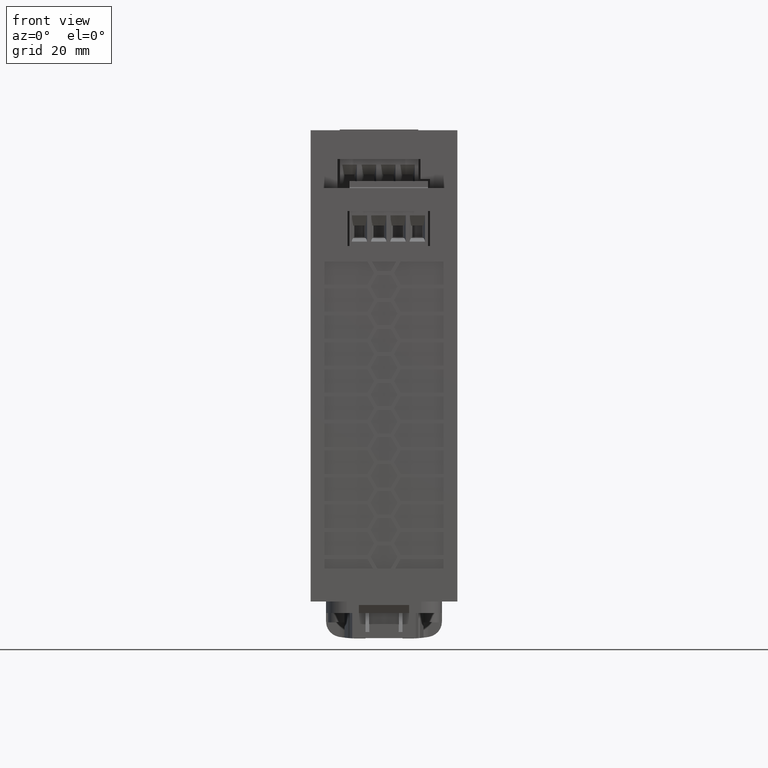
[diagram: clean part render]
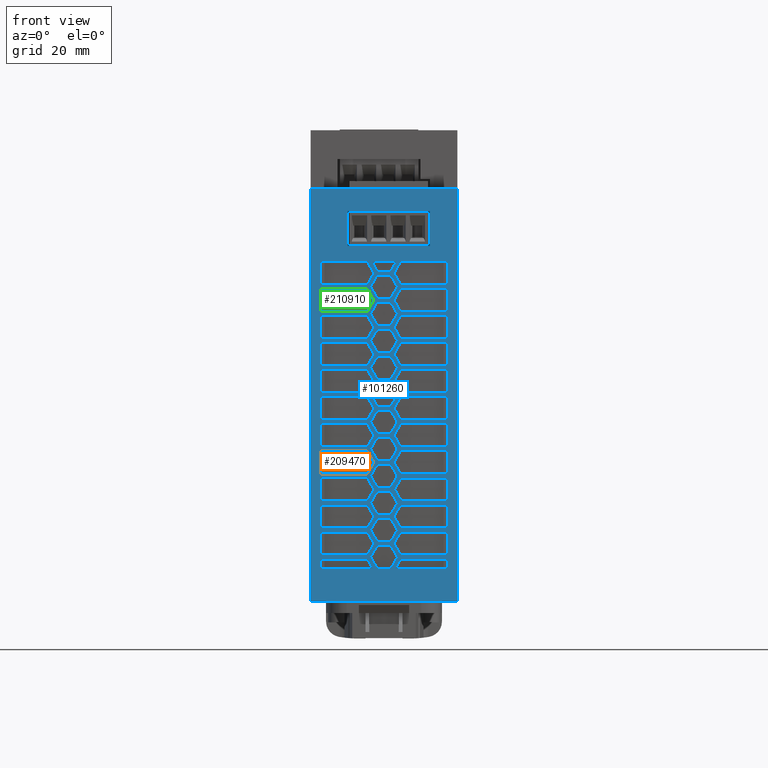
[diagram: same view with three faces highlighted in distinct colors, each labeled with its STEP entity id]
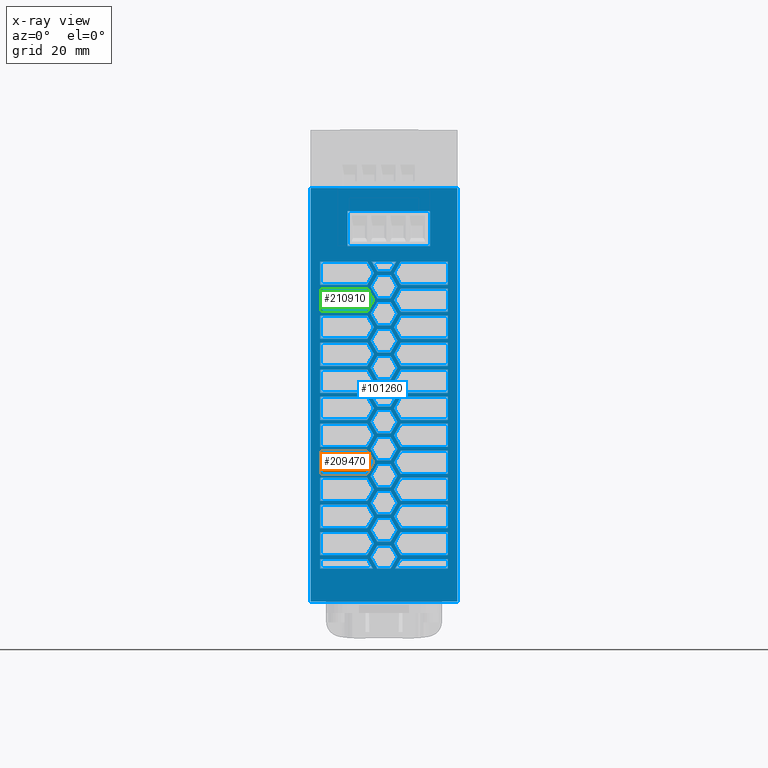
[diagram: x-ray of the same camera — body ghosted, the three highlighted faces saturated]
A machine part, front view with three faces highlighted in distinct colors.
The next image is the same camera in x-ray (body ghosted, the three faces saturated) — at least one of them is partly hidden behind the body in this view.
Their STEP definitions:

[orange] entity #209470 — the highlighted planar face has unit normal (0, -1, 0).
#159850=CARTESIAN_POINT('',(1.50008701269979,39.0000000000089,
128.10477354438));
#159860=VERTEX_POINT('',#159850);
#159890=CARTESIAN_POINT('',(1.50008701269979,0.,128.10477354438));
#159900=DIRECTION('',(-4.86344556426725E-30,1.,-3.53758905334135E-25));
#159910=VECTOR('',#159900,1.);
#159920=LINE('',#159890,#159910);
#159930=CARTESIAN_POINT('',(1.50008701269979,33.0000000000089,
128.10477354438));
#159940=VERTEX_POINT('',#159930);
#159950=EDGE_CURVE('',#159940,#159860,#159920,.T.);
#180740=CARTESIAN_POINT('',(13.6699599926279,39.0000000000089,
128.104606247324));
#180750=VERTEX_POINT('',#180740);
#180780=CARTESIAN_POINT('',(-1.37468202296986E-5,39.0000000000089,
128.104794165996));
#180790=DIRECTION('',(0.999999999905512,3.00926553810506E-36,
-1.37468202355512E-5));
#180800=VECTOR('',#180790,1.);
#180810=LINE('',#180780,#180800);
#180820=EDGE_CURVE('',#159860,#180750,#180810,.T.);
#186580=CARTESIAN_POINT('',(13.6699599926279,33.0000000000089,
128.104606247324));
#186590=VERTEX_POINT('',#186580);
#186620=CARTESIAN_POINT('',(-5.38259888883549,0.,128.104868159426));
#186630=DIRECTION('',(-0.499999999952773,-0.866025403784429,
6.87341011777585E-6));
#186640=VECTOR('',#186630,1.);
#186650=LINE('',#186620,#186640);
#186660=CARTESIAN_POINT('',(15.4020108000332,36.0000000000089,
128.104582437133));
#186670=VERTEX_POINT('',#186660);
#186680=EDGE_CURVE('',#186670,#186590,#186650,.T.);
#195410=CARTESIAN_POINT('',(36.1866204889019,0.,128.10429671484));
#195420=DIRECTION('',(0.499999999952773,-0.866025403784429,
-6.87341011777585E-6));
#195430=VECTOR('',#195420,1.);
#195440=LINE('',#195410,#195430);
#195450=EDGE_CURVE('',#180750,#186670,#195440,.T.);
#200320=CARTESIAN_POINT('',(-1.37468202296986E-5,33.0000000000089,
128.104794165996));
#200330=DIRECTION('',(-0.999999999905512,-3.00926553810506E-36,
1.37468202355512E-5));
#200340=VECTOR('',#200330,1.);
#200350=LINE('',#200320,#200340);
#200360=EDGE_CURVE('',#186590,#159940,#200350,.T.);
#209350=CARTESIAN_POINT('',(29.2321378176484,53.5000000000094,
128.104392316863));
#209360=DIRECTION('',(1.37468202355512E-5,3.53758905367566E-25,
0.999999999905512));
#209370=DIRECTION('',(0.999999999905512,-2.57338714660514E-20,
-1.37468202355512E-5));
#209380=AXIS2_PLACEMENT_3D('',#209350,#209360,#209370);
#209390=PLANE('',#209380);
#209400=ORIENTED_EDGE('',*,*,#159950,.F.);
#209410=ORIENTED_EDGE('',*,*,#180820,.F.);
#209420=ORIENTED_EDGE('',*,*,#195450,.F.);
#209430=ORIENTED_EDGE('',*,*,#186680,.F.);
#209440=ORIENTED_EDGE('',*,*,#200360,.F.);
#209450=EDGE_LOOP('',(#209440,#209430,#209420,#209410,#209400));
#209460=FACE_OUTER_BOUND('',#209450,.T.);
#209470=ADVANCED_FACE('',(#209460),#209390,.T.);

[blue] entity #101260 — the highlighted planar face has unit normal (0, -1, 0).
#82440=CARTESIAN_POINT('',(-0.99989924024375,9.8339109739502E-12,
129.104807911336));
#82450=VERTEX_POINT('',#82440);
#82480=CARTESIAN_POINT('',(34.0001007564492,9.83391187468138E-12,
129.104326772628));
#82490=DIRECTION('',(0.999999999905512,2.57338714660564E-20,
-1.37468202355512E-5));
#82500=VECTOR('',#82490,1.);
#82510=LINE('',#82480,#82500);
#82520=CARTESIAN_POINT('',(37.0001007561657,9.83391195188299E-12,
129.104285532167));
#82530=VERTEX_POINT('',#82520);
#82540=EDGE_CURVE('',#82450,#82530,#82510,.T.);
#84370=CARTESIAN_POINT('',(37.0001007561657,0.,129.104285532167));
#84380=DIRECTION('',(-2.5733871468488E-20,1.,0.));
#84390=VECTOR('',#84380,1.);
#84400=LINE('',#84370,#84390);
#84410=CARTESIAN_POINT('',(37.0001007561657,107.000000000009,
129.104285532167));
#84420=VERTEX_POINT('',#84410);
#84430=EDGE_CURVE('',#82530,#84420,#84400,.T.);
#84930=CARTESIAN_POINT('',(37.0001007561657,9.83391195188299E-12,
129.104285532167));
#84940=DIRECTION('',(1.37468202355512E-5,3.53758905042085E-25,
0.999999999905512));
#84950=DIRECTION('',(-0.999999999905512,-2.57338714660564E-20,
1.37468202355512E-5));
#84960=AXIS2_PLACEMENT_3D('',#84930,#84940,#84950);
#84970=PLANE('',#84960);
#84980=CARTESIAN_POINT('',(0.,101.000000000009,129.104794165901));
#84990=DIRECTION('',(-0.999999999905512,0.,1.37468202355512E-5));
#85000=VECTOR('',#84990,1.);
#85010=LINE('',#84980,#85000);
#85020=CARTESIAN_POINT('',(29.9401007568328,101.000000000009,
129.104382584718));
#85030=VERTEX_POINT('',#85020);
#85040=CARTESIAN_POINT('',(8.54010075885484,101.000000000009,
129.104676766671));
#85050=VERTEX_POINT('',#85040);
#85060=EDGE_CURVE('',#85030,#85050,#85010,.T.);
#85070=ORIENTED_EDGE('',*,*,#85060,.F.);
#85080=CARTESIAN_POINT('',(8.54010075885484,0.,129.104676766671));
#85090=DIRECTION('',(4.86344526031472E-30,-1.,3.53758905008654E-25));
#85100=VECTOR('',#85090,1.);
#85110=LINE('',#85080,#85100);
#85120=CARTESIAN_POINT('',(8.54010075885484,92.0000000000089,
129.104676766671));
#85130=VERTEX_POINT('',#85120);
#85140=EDGE_CURVE('',#85050,#85130,#85110,.T.);
#85150=ORIENTED_EDGE('',*,*,#85140,.F.);
#85160=CARTESIAN_POINT('',(0.,92.0000000000089,129.104794165901));
#85170=DIRECTION('',(0.999999999905512,0.,-1.37468202355512E-5));
#85180=VECTOR('',#85170,1.);
#85190=LINE('',#85160,#85180);
#85200=CARTESIAN_POINT('',(29.9401007568328,92.0000000000089,
129.104382584718));
#85210=VERTEX_POINT('',#85200);
#85220=EDGE_CURVE('',#85130,#85210,#85190,.T.);
#85230=ORIENTED_EDGE('',*,*,#85220,.F.);
#85240=CARTESIAN_POINT('',(29.9401007568328,0.,129.104382584718));
#85250=DIRECTION('',(4.86344526031472E-30,-1.,3.53758905008654E-25));
#85260=VECTOR('',#85250,1.);
#85270=LINE('',#85240,#85260);
#85280=EDGE_CURVE('',#85030,#85210,#85270,.T.);
#85290=ORIENTED_EDGE('',*,*,#85280,.T.);
#85300=EDGE_LOOP('',(#85290,#85230,#85150,#85070));
#85310=FACE_BOUND('',#85300,.T.);
#85320=CARTESIAN_POINT('',(-0.99989924024375,0.,129.104807911336));
#85330=DIRECTION('',(-2.5733871468488E-20,1.,0.));
#85340=VECTOR('',#85330,1.);
#85350=LINE('',#85320,#85340);
#85360=CARTESIAN_POINT('',(-0.99989924024375,107.000000000009,
129.104807911336));
#85370=VERTEX_POINT('',#85360);
#85380=EDGE_CURVE('',#82450,#85370,#85350,.T.);
#85390=ORIENTED_EDGE('',*,*,#85380,.F.);
#85400=CARTESIAN_POINT('',(0.,107.000000000009,129.104794165901));
#85410=DIRECTION('',(-0.999999999905512,0.,1.37468202355512E-5));
#85420=VECTOR('',#85410,1.);
#85430=LINE('',#85400,#85420);
#85440=EDGE_CURVE('',#84420,#85370,#85430,.T.);
#85450=ORIENTED_EDGE('',*,*,#85440,.T.);
#85460=ORIENTED_EDGE('',*,*,#84430,.T.);
#85470=ORIENTED_EDGE('',*,*,#82540,.T.);
#85480=EDGE_LOOP('',(#85470,#85460,#85450,#85390));
#85490=FACE_OUTER_BOUND('',#85480,.T.);
#85500=CARTESIAN_POINT('',(0.,71.5000000000089,129.104794165901));
#85510=DIRECTION('',(-0.999999999905512,0.,1.37468202355512E-5));
#85520=VECTOR('',#85510,1.);
#85530=LINE('',#85500,#85520);
#85540=CARTESIAN_POINT('',(19.7321515653663,71.5000000000089,
129.104522911561));
#85550=VERTEX_POINT('',#85540);
#85560=CARTESIAN_POINT('',(16.2680499505556,71.5000000000089,
129.104570531943));
#85570=VERTEX_POINT('',#85560);
#85580=EDGE_CURVE('',#85550,#85570,#85530,.T.);
#85590=ORIENTED_EDGE('',*,*,#85580,.T.);
#85600=CARTESIAN_POINT('',(-21.5483926777984,0.,129.105090387782));
#85610=DIRECTION('',(-0.499999999952773,-0.866025403784429,
6.87341011779141E-6));
#85620=VECTOR('',#85610,1.);
#85630=LINE('',#85600,#85620);
#85640=CARTESIAN_POINT('',(21.4642023727716,74.5000000000089,
129.10449910137));
#85650=VERTEX_POINT('',#85640);
#85660=EDGE_CURVE('',#85650,#85550,#85630,.T.);
#85670=ORIENTED_EDGE('',*,*,#85660,.T.);
#85680=CARTESIAN_POINT('',(64.4767974233417,0.,129.103907814958));
#85690=DIRECTION('',(0.499999999952773,-0.866025403784429,
-6.87341011779141E-6));
#85700=VECTOR('',#85690,1.);
#85710=LINE('',#85680,#85700);
#85720=CARTESIAN_POINT('',(19.7321515653663,77.5000000000089,
129.104522911561));
#85730=VERTEX_POINT('',#85720);
#85740=EDGE_CURVE('',#85730,#85650,#85710,.T.);
#85750=ORIENTED_EDGE('',*,*,#85740,.T.);
#85760=CARTESIAN_POINT('',(0.,77.5000000000089,129.104794165901));
#85770=DIRECTION('',(0.999999999905512,0.,-1.37468202355512E-5));
#85780=VECTOR('',#85770,1.);
#85790=LINE('',#85760,#85780);
#85800=CARTESIAN_POINT('',(16.2680499505557,77.5000000000089,
129.104570531943));
#85810=VERTEX_POINT('',#85800);
#85820=EDGE_CURVE('',#85810,#85730,#85790,.T.);
#85830=ORIENTED_EDGE('',*,*,#85820,.T.);
#85840=CARTESIAN_POINT('',(-28.4765959074197,0.,129.105185628546));
#85850=DIRECTION('',(0.499999999952773,0.866025403784429,
-6.87341011779141E-6));
#85860=VECTOR('',#85850,1.);
#85870=LINE('',#85840,#85860);
#85880=CARTESIAN_POINT('',(14.5359991431503,74.5000000000088,
129.104594342134));
#85890=VERTEX_POINT('',#85880);
#85900=EDGE_CURVE('',#85890,#85810,#85870,.T.);
#85910=ORIENTED_EDGE('',*,*,#85900,.T.);
#85920=CARTESIAN_POINT('',(57.5485941937203,0.,129.104003055722));
#85930=DIRECTION('',(-0.499999999952773,0.866025403784429,
6.87341011779141E-6));
#85940=VECTOR('',#85930,1.);
#85950=LINE('',#85920,#85940);
#85960=EDGE_CURVE('',#85570,#85890,#85950,.T.);
#85970=ORIENTED_EDGE('',*,*,#85960,.T.);
#85980=EDGE_LOOP('',(#85970,#85910,#85830,#85750,#85670,#85590));
#85990=FACE_BOUND('',#85980,.T.);
#86000=CARTESIAN_POINT('',(56.3938936554503,0.,129.104018929183));
#86010=DIRECTION('',(0.499999999952773,-0.866025403784429,
-6.87341011779141E-6));
#86020=VECTOR('',#86010,1.);
#86030=LINE('',#86000,#86020);
#86040=CARTESIAN_POINT('',(19.7321515653663,63.5000000000089,
129.104522911561));
#86050=VERTEX_POINT('',#86040);
#86060=CARTESIAN_POINT('',(21.4642023727717,60.5000000000089,
129.10449910137));
#86070=VERTEX_POINT('',#86060);
#86080=EDGE_CURVE('',#86050,#86070,#86030,.T.);
#86090=ORIENTED_EDGE('',*,*,#86080,.T.);
#86100=CARTESIAN_POINT('',(0.,63.5000000000089,129.104794165901));
#86110=DIRECTION('',(0.999999999905512,0.,-1.37468202355512E-5));
#86120=VECTOR('',#86110,1.);
#86130=LINE('',#86100,#86120);
#86140=CARTESIAN_POINT('',(16.2680499505557,63.5000000000089,
129.104570531943));
#86150=VERTEX_POINT('',#86140);
#86160=EDGE_CURVE('',#86150,#86050,#86130,.T.);
#86170=ORIENTED_EDGE('',*,*,#86160,.T.);
#86180=CARTESIAN_POINT('',(-20.3936921395283,0.,129.105074514321));
#86190=DIRECTION('',(0.499999999952773,0.866025403784429,
-6.87341011779141E-6));
#86200=VECTOR('',#86190,1.);
#86210=LINE('',#86180,#86200);
#86220=CARTESIAN_POINT('',(14.5359991431503,60.5000000000088,
129.104594342134));
#86230=VERTEX_POINT('',#86220);
#86240=EDGE_CURVE('',#86230,#86150,#86210,.T.);
#86250=ORIENTED_EDGE('',*,*,#86240,.T.);
#86260=CARTESIAN_POINT('',(49.4656904258289,0.,129.104114169947));
#86270=DIRECTION('',(-0.499999999952773,0.866025403784429,
6.87341011779141E-6));
#86280=VECTOR('',#86270,1.);
#86290=LINE('',#86260,#86280);
#86300=CARTESIAN_POINT('',(16.2680499505556,57.5000000000089,
129.104570531943));
#86310=VERTEX_POINT('',#86300);
#86320=EDGE_CURVE('',#86310,#86230,#86290,.T.);
#86330=ORIENTED_EDGE('',*,*,#86320,.T.);
#86340=CARTESIAN_POINT('',(0.,57.5000000000089,129.104794165901));
#86350=DIRECTION('',(-0.999999999905512,0.,1.37468202355512E-5));
#86360=VECTOR('',#86350,1.);
#86370=LINE('',#86340,#86360);
#86380=CARTESIAN_POINT('',(19.7321515653663,57.5000000000089,
129.104522911561));
#86390=VERTEX_POINT('',#86380);
#86400=EDGE_CURVE('',#86390,#86310,#86370,.T.);
#86410=ORIENTED_EDGE('',*,*,#86400,.T.);
#86420=CARTESIAN_POINT('',(-13.465488909907,0.,129.104979273557));
#86430=DIRECTION('',(-0.499999999952773,-0.866025403784429,
6.87341011779141E-6));
#86440=VECTOR('',#86430,1.);
#86450=LINE('',#86420,#86440);
#86460=EDGE_CURVE('',#86070,#86390,#86450,.T.);
#86470=ORIENTED_EDGE('',*,*,#86460,.T.);
#86480=EDGE_LOOP('',(#86470,#86410,#86330,#86250,#86170,#86090));
#86490=FACE_BOUND('',#86480,.T.);
#86500=CARTESIAN_POINT('',(-17.5069407938527,0.,129.105034830669));
#86510=DIRECTION('',(-0.499999999952773,-0.866025403784429,
6.87341011779141E-6));
#86520=VECTOR('',#86510,1.);
#86530=LINE('',#86500,#86520);
#86540=CARTESIAN_POINT('',(21.4642023727716,67.5000000000089,
129.10449910137));
#86550=VERTEX_POINT('',#86540);
#86560=CARTESIAN_POINT('',(19.7321515653663,64.5000000000088,
129.104522911561));
#86570=VERTEX_POINT('',#86560);
#86580=EDGE_CURVE('',#86550,#86570,#86530,.T.);
#86590=ORIENTED_EDGE('',*,*,#86580,.T.);
#86600=CARTESIAN_POINT('',(60.435345539396,0.,129.10396337207));
#86610=DIRECTION('',(0.499999999952773,-0.866025403784429,
-6.87341011779141E-6));
#86620=VECTOR('',#86610,1.);
#86630=LINE('',#86600,#86620);
#86640=CARTESIAN_POINT('',(19.7321515653663,70.5000000000089,
129.104522911561));
#86650=VERTEX_POINT('',#86640);
#86660=EDGE_CURVE('',#86650,#86550,#86630,.T.);
#86670=ORIENTED_EDGE('',*,*,#86660,.T.);
#86680=CARTESIAN_POINT('',(0.,70.5000000000089,129.104794165901));
#86690=DIRECTION('',(0.999999999905512,0.,-1.37468202355512E-5));
#86700=VECTOR('',#86690,1.);
#86710=LINE('',#86680,#86700);
#86720=CARTESIAN_POINT('',(16.2680499505557,70.5000000000089,
129.104570531943));
#86730=VERTEX_POINT('',#86720);
#86740=EDGE_CURVE('',#86730,#86650,#86710,.T.);
#86750=ORIENTED_EDGE('',*,*,#86740,.T.);
#86760=CARTESIAN_POINT('',(-24.435144023474,0.,129.105130071434));
#86770=DIRECTION('',(0.499999999952773,0.866025403784429,
-6.87341011779141E-6));
#86780=VECTOR('',#86770,1.);
#86790=LINE('',#86760,#86780);
#86800=CARTESIAN_POINT('',(14.5359991431503,67.5000000000088,
129.104594342134));
#86810=VERTEX_POINT('',#86800);
#86820=EDGE_CURVE('',#86810,#86730,#86790,.T.);
#86830=ORIENTED_EDGE('',*,*,#86820,.T.);
#86840=CARTESIAN_POINT('',(53.5071423097746,0.,129.104058612835));
#86850=DIRECTION('',(-0.499999999952773,0.866025403784429,
6.87341011779141E-6));
#86860=VECTOR('',#86850,1.);
#86870=LINE('',#86840,#86860);
#86880=CARTESIAN_POINT('',(16.2680499505556,64.5000000000088,
129.104570531943));
#86890=VERTEX_POINT('',#86880);
#86900=EDGE_CURVE('',#86890,#86810,#86870,.T.);
#86910=ORIENTED_EDGE('',*,*,#86900,.T.);
#86920=CARTESIAN_POINT('',(0.,64.5000000000088,129.104794165901));
#86930=DIRECTION('',(-0.999999999905512,0.,1.37468202355512E-5));
#86940=VECTOR('',#86930,1.);
#86950=LINE('',#86920,#86940);
#86960=EDGE_CURVE('',#86570,#86890,#86950,.T.);
#86970=ORIENTED_EDGE('',*,*,#86960,.T.);
#86980=EDGE_LOOP('',(#86970,#86910,#86830,#86750,#86670,#86590));
#86990=FACE_BOUND('',#86980,.T.);
#87000=CARTESIAN_POINT('',(-16.3522402555829,0.,129.105018957209));
#87010=DIRECTION('',(0.499999999952773,0.866025403784429,
-6.87341011779141E-6));
#87020=VECTOR('',#87010,1.);
#87030=LINE('',#87000,#87020);
#87040=CARTESIAN_POINT('',(20.5981769690685,64.0000000000088,
129.104511006465));
#87050=VERTEX_POINT('',#87040);
#87060=CARTESIAN_POINT('',(22.3302277764739,67.0000000000089,
129.104487196274));
#87070=VERTEX_POINT('',#87060);
#87080=EDGE_CURVE('',#87050,#87070,#87030,.T.);
#87090=ORIENTED_EDGE('',*,*,#87080,.T.);
#87100=CARTESIAN_POINT('',(57.54859419372,0.,129.104003055722));
#87110=DIRECTION('',(-0.499999999952773,0.866025403784429,
6.87341011779141E-6));
#87120=VECTOR('',#87110,1.);
#87130=LINE('',#87100,#87120);
#87140=CARTESIAN_POINT('',(22.3302277764738,61.0000000000089,
129.104487196274));
#87150=VERTEX_POINT('',#87140);
#87160=EDGE_CURVE('',#87150,#87050,#87130,.T.);
#87170=ORIENTED_EDGE('',*,*,#87160,.T.);
#87180=CARTESIAN_POINT('',(0.,61.0000000000088,129.104794165901));
#87190=DIRECTION('',(-0.999999999905512,0.,1.37468202355512E-5));
#87200=VECTOR('',#87190,1.);
#87210=LINE('',#87180,#87200);
#87220=CARTESIAN_POINT('',(34.500100756402,61.0000000000088,
129.104319899218));
#87230=VERTEX_POINT('',#87220);
#87240=EDGE_CURVE('',#87230,#87150,#87210,.T.);
#87250=ORIENTED_EDGE('',*,*,#87240,.T.);
#87260=CARTESIAN_POINT('',(34.500100756402,0.,129.104319899218));
#87270=DIRECTION('',(4.86344555979027E-30,-1.,3.53758905008654E-25));
#87280=VECTOR('',#87270,1.);
#87290=LINE('',#87260,#87280);
#87300=CARTESIAN_POINT('',(34.500100756402,67.0000000000089,
129.104319899218));
#87310=VERTEX_POINT('',#87300);
#87320=EDGE_CURVE('',#87310,#87230,#87290,.T.);
#87330=ORIENTED_EDGE('',*,*,#87320,.T.);
#87340=CARTESIAN_POINT('',(0.,67.0000000000089,129.104794165901));
#87350=DIRECTION('',(0.999999999905512,0.,-1.37468202355512E-5));
#87360=VECTOR('',#87350,1.);
#87370=LINE('',#87340,#87360);
#87380=EDGE_CURVE('',#87070,#87310,#87370,.T.);
#87390=ORIENTED_EDGE('',*,*,#87380,.T.);
#87400=EDGE_LOOP('',(#87390,#87330,#87250,#87170,#87090));
#87410=FACE_BOUND('',#87400,.T.);
#87420=CARTESIAN_POINT('',(-1.34113325806991,0.,129.104812602219));
#87430=DIRECTION('',(-0.499999999952773,-0.866025403784429,
6.87341011779141E-6));
#87440=VECTOR('',#87430,1.);
#87450=LINE('',#87420,#87440);
#87460=CARTESIAN_POINT('',(21.4642023727717,39.5000000000089,
129.10449910137));
#87470=VERTEX_POINT('',#87460);
#87480=CARTESIAN_POINT('',(19.7321515653663,36.5000000000088,
129.104522911561));
#87490=VERTEX_POINT('',#87480);
#87500=EDGE_CURVE('',#87470,#87490,#87450,.T.);
#87510=ORIENTED_EDGE('',*,*,#87500,.T.);
#87520=CARTESIAN_POINT('',(44.2695380036132,0.,129.10418560052));
#87530=DIRECTION('',(0.499999999952773,-0.866025403784429,
-6.87341011779141E-6));
#87540=VECTOR('',#87530,1.);
#87550=LINE('',#87520,#87540);
#87560=CARTESIAN_POINT('',(19.7321515653664,42.5000000000089,
129.104522911561));
#87570=VERTEX_POINT('',#87560);
#87580=EDGE_CURVE('',#87570,#87470,#87550,.T.);
#87590=ORIENTED_EDGE('',*,*,#87580,.T.);
#87600=CARTESIAN_POINT('',(0.,42.5000000000089,129.104794165901));
#87610=DIRECTION('',(0.999999999905512,0.,-1.37468202355512E-5));
#87620=VECTOR('',#87610,1.);
#87630=LINE('',#87600,#87620);
#87640=CARTESIAN_POINT('',(16.2680499505556,42.5000000000089,
129.104570531943));
#87650=VERTEX_POINT('',#87640);
#87660=EDGE_CURVE('',#87650,#87570,#87630,.T.);
#87670=ORIENTED_EDGE('',*,*,#87660,.T.);
#87680=CARTESIAN_POINT('',(-8.2693364876912,0.,129.104907842983));
#87690=DIRECTION('',(0.499999999952773,0.866025403784429,
-6.87341011779141E-6));
#87700=VECTOR('',#87690,1.);
#87710=LINE('',#87680,#87700);
#87720=CARTESIAN_POINT('',(14.5359991431503,39.5000000000088,
129.104594342134));
#87730=VERTEX_POINT('',#87720);
#87740=EDGE_CURVE('',#87730,#87650,#87710,.T.);
#87750=ORIENTED_EDGE('',*,*,#87740,.T.);
#87760=CARTESIAN_POINT('',(37.3413347739919,0.,129.104280841285));
#87770=DIRECTION('',(-0.499999999952773,0.866025403784429,
6.87341011779141E-6));
#87780=VECTOR('',#87770,1.);
#87790=LINE('',#87760,#87780);
#87800=CARTESIAN_POINT('',(16.2680499505556,36.5000000000088,
129.104570531943));
#87810=VERTEX_POINT('',#87800);
#87820=EDGE_CURVE('',#87810,#87730,#87790,.T.);
#87830=ORIENTED_EDGE('',*,*,#87820,.T.);
#87840=CARTESIAN_POINT('',(0.,36.5000000000088,129.104794165901));
#87850=DIRECTION('',(-0.999999999905512,0.,1.37468202355512E-5));
#87860=VECTOR('',#87850,1.);
#87870=LINE('',#87840,#87860);
#87880=EDGE_CURVE('',#87490,#87810,#87870,.T.);
#87890=ORIENTED_EDGE('',*,*,#87880,.T.);
#87900=EDGE_LOOP('',(#87890,#87830,#87750,#87670,#87590,#87510));
#87910=FACE_BOUND('',#87900,.T.);
#87920=CARTESIAN_POINT('',(11.937922932037,0.,129.104630057421));
#87930=DIRECTION('',(0.499999999952773,0.866025403784429,
-6.87341011779141E-6));
#87940=VECTOR('',#87930,1.);
#87950=LINE('',#87920,#87940);
#87960=CARTESIAN_POINT('',(20.5981769690685,15.0000000000088,
129.104511006465));
#87970=VERTEX_POINT('',#87960);
#87980=CARTESIAN_POINT('',(22.3302277764739,18.0000000000089,
129.104487196274));
#87990=VERTEX_POINT('',#87980);
#88000=EDGE_CURVE('',#87970,#87990,#87950,.T.);
#88010=ORIENTED_EDGE('',*,*,#88000,.T.);
#88020=CARTESIAN_POINT('',(29.2584310061001,0.,129.10439195551));
#88030=DIRECTION('',(-0.499999999952773,0.866025403784429,
6.87341011779141E-6));
#88040=VECTOR('',#88030,1.);
#88050=LINE('',#88020,#88040);
#88060=CARTESIAN_POINT('',(22.3302277764738,12.0000000000088,
129.104487196274));
#88070=VERTEX_POINT('',#88060);
#88080=EDGE_CURVE('',#88070,#87970,#88050,.T.);
#88090=ORIENTED_EDGE('',*,*,#88080,.T.);
#88100=CARTESIAN_POINT('',(0.,12.0000000000088,129.104794165901));
#88110=DIRECTION('',(-0.999999999905512,0.,1.37468202355512E-5));
#88120=VECTOR('',#88110,1.);
#88130=LINE('',#88100,#88120);
#88140=CARTESIAN_POINT('',(34.5001007564019,12.0000000000088,
129.104319899218));
#88150=VERTEX_POINT('',#88140);
#88160=EDGE_CURVE('',#88150,#88070,#88130,.T.);
#88170=ORIENTED_EDGE('',*,*,#88160,.T.);
#88180=CARTESIAN_POINT('',(34.500100756402,0.,129.104319899218));
#88190=DIRECTION('',(4.86344555979027E-30,-1.,3.53758905008654E-25));
#88200=VECTOR('',#88190,1.);
#88210=LINE('',#88180,#88200);
#88220=CARTESIAN_POINT('',(34.500100756402,18.0000000000089,
129.104319899218));
#88230=VERTEX_POINT('',#88220);
#88240=EDGE_CURVE('',#88230,#88150,#88210,.T.);
#88250=ORIENTED_EDGE('',*,*,#88240,.T.);
#88260=CARTESIAN_POINT('',(0.,18.0000000000089,129.104794165901));
#88270=DIRECTION('',(0.999999999905512,0.,-1.37468202355512E-5));
#88280=VECTOR('',#88270,1.);
#88290=LINE('',#88260,#88280);
#88300=EDGE_CURVE('',#87990,#88230,#88290,.T.);
#88310=ORIENTED_EDGE('',*,*,#88300,.T.);
#88320=EDGE_LOOP('',(#88310,#88250,#88170,#88090,#88010));
#88330=FACE_BOUND('',#88320,.T.);
#88340=CARTESIAN_POINT('',(0.,32.0000000000089,129.104794165901));
#88350=DIRECTION('',(0.999999999905512,0.,-1.37468202355512E-5));
#88360=VECTOR('',#88350,1.);
#88370=LINE('',#88340,#88360);
#88380=CARTESIAN_POINT('',(22.3302277764738,32.0000000000089,
129.104487196274));
#88390=VERTEX_POINT('',#88380);
#88400=CARTESIAN_POINT('',(34.500100756402,32.0000000000089,
129.104319899218));
#88410=VERTEX_POINT('',#88400);
#88420=EDGE_CURVE('',#88390,#88410,#88370,.T.);
#88430=ORIENTED_EDGE('',*,*,#88420,.T.);
#88440=CARTESIAN_POINT('',(3.85501916414555,0.,129.104741171646));
#88450=DIRECTION('',(0.499999999952773,0.866025403784429,
-6.87341011779141E-6));
#88460=VECTOR('',#88450,1.);
#88470=LINE('',#88440,#88460);
#88480=CARTESIAN_POINT('',(20.5981769690685,29.0000000000088,
129.104511006465));
#88490=VERTEX_POINT('',#88480);
#88500=EDGE_CURVE('',#88490,#88390,#88470,.T.);
#88510=ORIENTED_EDGE('',*,*,#88500,.T.);
#88520=CARTESIAN_POINT('',(37.3413347739915,0.,129.104280841285));
#88530=DIRECTION('',(-0.499999999952773,0.866025403784429,
6.87341011779141E-6));
#88540=VECTOR('',#88530,1.);
#88550=LINE('',#88520,#88540);
#88560=CARTESIAN_POINT('',(22.3302277764738,26.0000000000088,
129.104487196274));
#88570=VERTEX_POINT('',#88560);
#88580=EDGE_CURVE('',#88570,#88490,#88550,.T.);
#88590=ORIENTED_EDGE('',*,*,#88580,.T.);
#88600=CARTESIAN_POINT('',(0.,26.0000000000088,129.104794165901));
#88610=DIRECTION('',(-0.999999999905512,0.,1.37468202355512E-5));
#88620=VECTOR('',#88610,1.);
#88630=LINE('',#88600,#88620);
#88640=CARTESIAN_POINT('',(34.500100756402,26.0000000000088,
129.104319899218));
#88650=VERTEX_POINT('',#88640);
#88660=EDGE_CURVE('',#88650,#88570,#88630,.T.);
#88670=ORIENTED_EDGE('',*,*,#88660,.T.);
#88680=CARTESIAN_POINT('',(34.500100756402,0.,129.104319899218));
#88690=DIRECTION('',(4.86344555979027E-30,-1.,3.53758905008654E-25));
#88700=VECTOR('',#88690,1.);
#88710=LINE('',#88680,#88700);
#88720=EDGE_CURVE('',#88410,#88650,#88710,.T.);
#88730=ORIENTED_EDGE('',*,*,#88720,.T.);
#88740=EDGE_LOOP('',(#88730,#88670,#88590,#88510,#88430));
#88750=FACE_BOUND('',#88740,.T.);
#88760=CARTESIAN_POINT('',(0.,40.0000000000089,129.104794165901));
#88770=DIRECTION('',(-0.999999999905512,0.,1.37468202355512E-5));
#88780=VECTOR('',#88770,1.);
#88790=LINE('',#88760,#88780);
#88800=CARTESIAN_POINT('',(13.6699737394481,40.0000000000089,
129.10460624723));
#88810=VERTEX_POINT('',#88800);
#88820=CARTESIAN_POINT('',(1.50010075952003,40.0000000000089,
129.104773544286));
#88830=VERTEX_POINT('',#88820);
#88840=EDGE_CURVE('',#88810,#88830,#88790,.T.);
#88850=ORIENTED_EDGE('',*,*,#88840,.T.);
#88860=CARTESIAN_POINT('',(-9.42403702596095,0.,129.104923716444));
#88870=DIRECTION('',(-0.499999999952773,-0.866025403784429,
6.87341011779141E-6));
#88880=VECTOR('',#88870,1.);
#88890=LINE('',#88860,#88880);
#88900=CARTESIAN_POINT('',(15.4020245468535,43.0000000000089,
129.104582437039));
#88910=VERTEX_POINT('',#88900);
#88920=EDGE_CURVE('',#88910,#88810,#88890,.T.);
#88930=ORIENTED_EDGE('',*,*,#88920,.T.);
#88940=CARTESIAN_POINT('',(40.2280861196679,0.,129.104241157633));
#88950=DIRECTION('',(0.499999999952773,-0.866025403784429,
-6.87341011779141E-6));
#88960=VECTOR('',#88950,1.);
#88970=LINE('',#88940,#88960);
#88980=CARTESIAN_POINT('',(13.6699737394482,46.0000000000089,
129.10460624723));
#88990=VERTEX_POINT('',#88980);
#89000=EDGE_CURVE('',#88990,#88910,#88970,.T.);
#89010=ORIENTED_EDGE('',*,*,#89000,.T.);
#89020=CARTESIAN_POINT('',(0.,46.0000000000089,129.104794165901));
#89030=DIRECTION('',(0.999999999905512,0.,-1.37468202355512E-5));
#89040=VECTOR('',#89030,1.);
#89050=LINE('',#89020,#89040);
#89060=CARTESIAN_POINT('',(1.50010075952003,46.0000000000089,
129.104773544286));
#89070=VERTEX_POINT('',#89060);
#89080=EDGE_CURVE('',#89070,#88990,#89050,.T.);
#89090=ORIENTED_EDGE('',*,*,#89080,.T.);
#89100=CARTESIAN_POINT('',(1.50010075952003,0.,129.104773544286));
#89110=DIRECTION('',(-4.86344555979027E-30,1.,-3.53758905008654E-25));
#89120=VECTOR('',#89110,1.);
#89130=LINE('',#89100,#89120);
#89140=EDGE_CURVE('',#88830,#89070,#89130,.T.);
#89150=ORIENTED_EDGE('',*,*,#89140,.T.);
#89160=EDGE_LOOP('',(#89150,#89090,#89010,#88930,#88850));
#89170=FACE_BOUND('',#89160,.T.);
#89180=CARTESIAN_POINT('',(0.,21.5000000000089,129.104794165901));
#89190=DIRECTION('',(0.999999999905512,0.,-1.37468202355512E-5));
#89200=VECTOR('',#89190,1.);
#89210=LINE('',#89180,#89200);
#89220=CARTESIAN_POINT('',(16.2680499505556,21.5000000000089,
129.104570531943));
#89230=VERTEX_POINT('',#89220);
#89240=CARTESIAN_POINT('',(19.7321515653663,21.5000000000089,
129.104522911561));
#89250=VERTEX_POINT('',#89240);
#89260=EDGE_CURVE('',#89230,#89250,#89210,.T.);
#89270=ORIENTED_EDGE('',*,*,#89260,.T.);
#89280=CARTESIAN_POINT('',(3.85501916414589,0.,129.104741171646));
#89290=DIRECTION('',(0.499999999952773,0.866025403784429,
-6.87341011779141E-6));
#89300=VECTOR('',#89290,1.);
#89310=LINE('',#89280,#89300);
#89320=CARTESIAN_POINT('',(14.5359991431503,18.5000000000088,
129.104594342134));
#89330=VERTEX_POINT('',#89320);
#89340=EDGE_CURVE('',#89330,#89230,#89310,.T.);
#89350=ORIENTED_EDGE('',*,*,#89340,.T.);
#89360=CARTESIAN_POINT('',(25.2169791221547,0.,129.104447512622));
#89370=DIRECTION('',(-0.499999999952773,0.866025403784429,
6.87341011779141E-6));
#89380=VECTOR('',#89370,1.);
#89390=LINE('',#89360,#89380);
#89400=CARTESIAN_POINT('',(16.2680499505556,15.5000000000089,
129.104570531943));
#89410=VERTEX_POINT('',#89400);
#89420=EDGE_CURVE('',#89410,#89330,#89390,.T.);
#89430=ORIENTED_EDGE('',*,*,#89420,.T.);
#89440=CARTESIAN_POINT('',(0.,15.5000000000089,129.104794165901));
#89450=DIRECTION('',(-0.999999999905512,0.,1.37468202355512E-5));
#89460=VECTOR('',#89450,1.);
#89470=LINE('',#89440,#89460);
#89480=CARTESIAN_POINT('',(19.7321515653663,15.5000000000089,
129.104522911561));
#89490=VERTEX_POINT('',#89480);
#89500=EDGE_CURVE('',#89490,#89410,#89470,.T.);
#89510=ORIENTED_EDGE('',*,*,#89500,.T.);
#89520=CARTESIAN_POINT('',(10.7832223937672,0.,129.104645930881));
#89530=DIRECTION('',(-0.499999999952773,-0.866025403784429,
6.87341011779141E-6));
#89540=VECTOR('',#89530,1.);
#89550=LINE('',#89520,#89540);
#89560=CARTESIAN_POINT('',(21.4642023727716,18.5000000000089,
129.10449910137));
#89570=VERTEX_POINT('',#89560);
#89580=EDGE_CURVE('',#89570,#89490,#89550,.T.);
#89590=ORIENTED_EDGE('',*,*,#89580,.T.);
#89600=CARTESIAN_POINT('',(32.1451823517761,0.,129.104352271858));
#89610=DIRECTION('',(0.499999999952773,-0.866025403784429,
-6.87341011779141E-6));
#89620=VECTOR('',#89610,1.);
#89630=LINE('',#89600,#89620);
#89640=EDGE_CURVE('',#89250,#89570,#89630,.T.);
#89650=ORIENTED_EDGE('',*,*,#89640,.T.);
#89660=EDGE_LOOP('',(#89650,#89590,#89510,#89430,#89350,#89270));
#89670=FACE_BOUND('',#89660,.T.);
#89680=CARTESIAN_POINT('',(0.,39.0000000000089,129.104794165901));
#89690=DIRECTION('',(0.999999999905512,0.,-1.37468202355512E-5));
#89700=VECTOR('',#89690,1.);
#89710=LINE('',#89680,#89700);
#89720=CARTESIAN_POINT('',(1.50010075952003,39.0000000000089,
129.104773544286));
#89730=VERTEX_POINT('',#89720);
#89740=CARTESIAN_POINT('',(13.6699737394481,39.0000000000089,
129.10460624723));
#89750=VERTEX_POINT('',#89740);
#89760=EDGE_CURVE('',#89730,#89750,#89710,.T.);
#89770=ORIENTED_EDGE('',*,*,#89760,.T.);
#89780=CARTESIAN_POINT('',(1.50010075952003,0.,129.104773544286));
#89790=DIRECTION('',(-4.86344555979027E-30,1.,-3.53758905008654E-25));
#89800=VECTOR('',#89790,1.);
#89810=LINE('',#89780,#89800);
#89820=CARTESIAN_POINT('',(1.50010075952003,33.0000000000089,
129.104773544286));
#89830=VERTEX_POINT('',#89820);
#89840=EDGE_CURVE('',#89830,#89730,#89810,.T.);
#89850=ORIENTED_EDGE('',*,*,#89840,.T.);
#89860=CARTESIAN_POINT('',(0.,33.0000000000089,129.104794165901));
#89870=DIRECTION('',(-0.999999999905512,0.,1.37468202355512E-5));
#89880=VECTOR('',#89870,1.);
#89890=LINE('',#89860,#89880);
#89900=CARTESIAN_POINT('',(13.6699737394481,33.0000000000089,
129.10460624723));
#89910=VERTEX_POINT('',#89900);
#89920=EDGE_CURVE('',#89910,#89830,#89890,.T.);
#89930=ORIENTED_EDGE('',*,*,#89920,.T.);
#89940=CARTESIAN_POINT('',(-5.38258514201526,0.,129.104868159332));
#89950=DIRECTION('',(-0.499999999952773,-0.866025403784429,
6.87341011779141E-6));
#89960=VECTOR('',#89950,1.);
#89970=LINE('',#89940,#89960);
#89980=CARTESIAN_POINT('',(15.4020245468534,36.0000000000089,
129.104582437039));
#89990=VERTEX_POINT('',#89980);
#90000=EDGE_CURVE('',#89990,#89910,#89970,.T.);
#90010=ORIENTED_EDGE('',*,*,#90000,.T.);
#90020=CARTESIAN_POINT('',(36.1866342357221,0.,129.104296714745));
#90030=DIRECTION('',(0.499999999952773,-0.866025403784429,
-6.87341011779141E-6));
#90040=VECTOR('',#90030,1.);
#90050=LINE('',#90020,#90040);
#90060=EDGE_CURVE('',#89750,#89990,#90050,.T.);
#90070=ORIENTED_EDGE('',*,*,#90060,.T.);
#90080=EDGE_LOOP('',(#90070,#90010,#89930,#89850,#89770));
#90090=FACE_BOUND('',#90080,.T.);
#90100=CARTESIAN_POINT('',(-12.3107883716369,0.,129.104963400096));
#90110=DIRECTION('',(0.499999999952773,0.866025403784429,
-6.87341011779141E-6));
#90120=VECTOR('',#90110,1.);
#90130=LINE('',#90100,#90120);
#90140=CARTESIAN_POINT('',(14.5359991431503,46.5000000000088,
129.104594342134));
#90150=VERTEX_POINT('',#90140);
#90160=CARTESIAN_POINT('',(16.2680499505556,49.5000000000089,
129.104570531943));
#90170=VERTEX_POINT('',#90160);
#90180=EDGE_CURVE('',#90150,#90170,#90130,.T.);
#90190=ORIENTED_EDGE('',*,*,#90180,.T.);
#90200=CARTESIAN_POINT('',(41.3827866579376,0.,129.104225284172));
#90210=DIRECTION('',(-0.499999999952773,0.866025403784429,
6.87341011779141E-6));
#90220=VECTOR('',#90210,1.);
#90230=LINE('',#90200,#90220);
#90240=CARTESIAN_POINT('',(16.2680499505556,43.5000000000088,
129.104570531943));
#90250=VERTEX_POINT('',#90240);
#90260=EDGE_CURVE('',#90250,#90150,#90230,.T.);
#90270=ORIENTED_EDGE('',*,*,#90260,.T.);
#90280=CARTESIAN_POINT('',(0.,43.5000000000088,129.104794165901));
#90290=DIRECTION('',(-0.999999999905512,0.,1.37468202355512E-5));
#90300=VECTOR('',#90290,1.);
#90310=LINE('',#90280,#90300);
#90320=CARTESIAN_POINT('',(19.7321515653663,43.5000000000088,
129.104522911561));
#90330=VERTEX_POINT('',#90320);
#90340=EDGE_CURVE('',#90330,#90250,#90310,.T.);
#90350=ORIENTED_EDGE('',*,*,#90340,.T.);
#90360=CARTESIAN_POINT('',(-5.3825851420156,0.,129.104868159332));
#90370=DIRECTION('',(-0.499999999952773,-0.866025403784429,
6.87341011779141E-6));
#90380=VECTOR('',#90370,1.);
#90390=LINE('',#90360,#90380);
#90400=CARTESIAN_POINT('',(21.4642023727716,46.5000000000089,
129.10449910137));
#90410=VERTEX_POINT('',#90400);
#90420=EDGE_CURVE('',#90410,#90330,#90390,.T.);
#90430=ORIENTED_EDGE('',*,*,#90420,.T.);
#90440=CARTESIAN_POINT('',(48.3109898875589,0.,129.104130043408));
#90450=DIRECTION('',(0.499999999952773,-0.866025403784429,
-6.87341011779141E-6));
#90460=VECTOR('',#90450,1.);
#90470=LINE('',#90440,#90460);
#90480=CARTESIAN_POINT('',(19.7321515653663,49.5000000000089,
129.104522911561));
#90490=VERTEX_POINT('',#90480);
#90500=EDGE_CURVE('',#90490,#90410,#90470,.T.);
#90510=ORIENTED_EDGE('',*,*,#90500,.T.);
#90520=CARTESIAN_POINT('',(0.,49.5000000000089,129.104794165901));
#90530=DIRECTION('',(0.999999999905512,0.,-1.37468202355512E-5));
#90540=VECTOR('',#90530,1.);
#90550=LINE('',#90520,#90540);
#90560=EDGE_CURVE('',#90170,#90490,#90550,.T.);
#90570=ORIENTED_EDGE('',*,*,#90560,.T.);
#90580=EDGE_LOOP('',(#90570,#90510,#90430,#90350,#90270,#90190));
#90590=FACE_BOUND('',#90580,.T.);
#90600=CARTESIAN_POINT('',(34.500100756402,0.,129.104319899218));
#90610=DIRECTION('',(4.86344555979027E-30,-1.,3.53758905008654E-25));
#90620=VECTOR('',#90610,1.);
#90630=LINE('',#90600,#90620);
#90640=CARTESIAN_POINT('',(34.500100756402,60.0000000000089,
129.104319899218));
#90650=VERTEX_POINT('',#90640);
#90660=CARTESIAN_POINT('',(34.500100756402,54.0000000000088,
129.104319899218));
#90670=VERTEX_POINT('',#90660);
#90680=EDGE_CURVE('',#90650,#90670,#90630,.T.);
#90690=ORIENTED_EDGE('',*,*,#90680,.T.);
#90700=CARTESIAN_POINT('',(0.,60.0000000000089,129.104794165901));
#90710=DIRECTION('',(0.999999999905512,0.,-1.37468202355512E-5));
#90720=VECTOR('',#90710,1.);
#90730=LINE('',#90700,#90720);
#90740=CARTESIAN_POINT('',(22.3302277764738,60.0000000000089,
129.104487196274));
#90750=VERTEX_POINT('',#90740);
#90760=EDGE_CURVE('',#90750,#90650,#90730,.T.);
#90770=ORIENTED_EDGE('',*,*,#90760,.T.);
#90780=CARTESIAN_POINT('',(-12.3107883716372,0.,129.104963400096));
#90790=DIRECTION('',(0.499999999952773,0.866025403784429,
-6.87341011779141E-6));
#90800=VECTOR('',#90790,1.);
#90810=LINE('',#90780,#90800);
#90820=CARTESIAN_POINT('',(20.5981769690685,57.0000000000088,
129.104511006465));
#90830=VERTEX_POINT('',#90820);
#90840=EDGE_CURVE('',#90830,#90750,#90810,.T.);
#90850=ORIENTED_EDGE('',*,*,#90840,.T.);
#90860=CARTESIAN_POINT('',(53.5071423097743,0.,129.104058612835));
#90870=DIRECTION('',(-0.499999999952773,0.866025403784429,
6.87341011779141E-6));
#90880=VECTOR('',#90870,1.);
#90890=LINE('',#90860,#90880);
#90900=CARTESIAN_POINT('',(22.3302277764738,54.0000000000088,
129.104487196274));
#90910=VERTEX_POINT('',#90900);
#90920=EDGE_CURVE('',#90910,#90830,#90890,.T.);
#90930=ORIENTED_EDGE('',*,*,#90920,.T.);
#90940=CARTESIAN_POINT('',(0.,54.0000000000088,129.104794165901));
#90950=DIRECTION('',(-0.999999999905512,0.,1.37468202355512E-5));
#90960=VECTOR('',#90950,1.);
#90970=LINE('',#90940,#90960);
#90980=EDGE_CURVE('',#90670,#90910,#90970,.T.);
#90990=ORIENTED_EDGE('',*,*,#90980,.T.);
#91000=EDGE_LOOP('',(#90990,#90930,#90850,#90770,#90690));
#91010=FACE_BOUND('',#91000,.T.);
#91020=CARTESIAN_POINT('',(0.,68.0000000000088,129.104794165901));
#91030=DIRECTION('',(-0.999999999905512,0.,1.37468202355512E-5));
#91040=VECTOR('',#91030,1.);
#91050=LINE('',#91020,#91040);
#91060=CARTESIAN_POINT('',(34.500100756402,68.0000000000088,
129.104319899218));
#91070=VERTEX_POINT('',#91060);
#91080=CARTESIAN_POINT('',(22.3302277764739,68.0000000000088,
129.104487196274));
#91090=VERTEX_POINT('',#91080);
#91100=EDGE_CURVE('',#91070,#91090,#91050,.T.);
#91110=ORIENTED_EDGE('',*,*,#91100,.T.);
#91120=CARTESIAN_POINT('',(34.500100756402,0.,129.104319899218));
#91130=DIRECTION('',(4.86344555979027E-30,-1.,3.53758905008654E-25));
#91140=VECTOR('',#91130,1.);
#91150=LINE('',#91120,#91140);
#91160=CARTESIAN_POINT('',(34.500100756402,74.0000000000089,
129.104319899218));
#91170=VERTEX_POINT('',#91160);
#91180=EDGE_CURVE('',#91170,#91070,#91150,.T.);
#91190=ORIENTED_EDGE('',*,*,#91180,.T.);
#91200=CARTESIAN_POINT('',(0.,74.0000000000089,129.104794165901));
#91210=DIRECTION('',(0.999999999905512,0.,-1.37468202355512E-5));
#91220=VECTOR('',#91210,1.);
#91230=LINE('',#91200,#91220);
#91240=CARTESIAN_POINT('',(22.3302277764738,74.0000000000089,
129.104487196274));
#91250=VERTEX_POINT('',#91240);
#91260=EDGE_CURVE('',#91250,#91170,#91230,.T.);
#91270=ORIENTED_EDGE('',*,*,#91260,.T.);
#91280=CARTESIAN_POINT('',(-20.3936921395286,0.,129.105074514321));
#91290=DIRECTION('',(0.499999999952773,0.866025403784429,
-6.87341011779141E-6));
#91300=VECTOR('',#91290,1.);
#91310=LINE('',#91280,#91300);
#91320=CARTESIAN_POINT('',(20.5981769690685,71.0000000000089,
129.104511006465));
#91330=VERTEX_POINT('',#91320);
#91340=EDGE_CURVE('',#91330,#91250,#91310,.T.);
#91350=ORIENTED_EDGE('',*,*,#91340,.T.);
#91360=CARTESIAN_POINT('',(61.5900460776657,0.,129.103947498609));
#91370=DIRECTION('',(-0.499999999952773,0.866025403784429,
6.87341011779141E-6));
#91380=VECTOR('',#91370,1.);
#91390=LINE('',#91360,#91380);
#91400=EDGE_CURVE('',#91090,#91330,#91390,.T.);
#91410=ORIENTED_EDGE('',*,*,#91400,.T.);
#91420=EDGE_LOOP('',(#91410,#91350,#91270,#91190,#91110));
#91430=FACE_BOUND('',#91420,.T.);
#91440=CARTESIAN_POINT('',(-13.4654889099066,0.,129.104979273557));
#91450=DIRECTION('',(-0.499999999952773,-0.866025403784429,
6.87341011779141E-6));
#91460=VECTOR('',#91450,1.);
#91470=LINE('',#91440,#91460);
#91480=CARTESIAN_POINT('',(15.4020245468535,50.0000000000089,
129.104582437039));
#91490=VERTEX_POINT('',#91480);
#91500=CARTESIAN_POINT('',(13.6699737394481,47.0000000000089,
129.10460624723));
#91510=VERTEX_POINT('',#91500);
#91520=EDGE_CURVE('',#91490,#91510,#91470,.T.);
#91530=ORIENTED_EDGE('',*,*,#91520,.T.);
#91540=CARTESIAN_POINT('',(44.2695380036136,0.,129.10418560052));
#91550=DIRECTION('',(0.499999999952773,-0.866025403784429,
-6.87341011779141E-6));
#91560=VECTOR('',#91550,1.);
#91570=LINE('',#91540,#91560);
#91580=CARTESIAN_POINT('',(13.6699737394482,53.0000000000089,
129.10460624723));
#91590=VERTEX_POINT('',#91580);
#91600=EDGE_CURVE('',#91590,#91490,#91570,.T.);
#91610=ORIENTED_EDGE('',*,*,#91600,.T.);
#91620=CARTESIAN_POINT('',(0.,53.0000000000089,129.104794165901));
#91630=DIRECTION('',(0.999999999905512,0.,-1.37468202355512E-5));
#91640=VECTOR('',#91630,1.);
#91650=LINE('',#91620,#91640);
#91660=CARTESIAN_POINT('',(1.50010075952003,53.0000000000089,
129.104773544286));
#91670=VERTEX_POINT('',#91660);
#91680=EDGE_CURVE('',#91670,#91590,#91650,.T.);
#91690=ORIENTED_EDGE('',*,*,#91680,.T.);
#91700=CARTESIAN_POINT('',(1.50010075952003,0.,129.104773544286));
#91710=DIRECTION('',(-4.86344555979027E-30,1.,-3.53758905008654E-25));
#91720=VECTOR('',#91710,1.);
#91730=LINE('',#91700,#91720);
#91740=CARTESIAN_POINT('',(1.50010075952003,47.0000000000089,
129.104773544286));
#91750=VERTEX_POINT('',#91740);
#91760=EDGE_CURVE('',#91750,#91670,#91730,.T.);
#91770=ORIENTED_EDGE('',*,*,#91760,.T.);
#91780=CARTESIAN_POINT('',(0.,47.0000000000089,129.104794165901));
#91790=DIRECTION('',(-0.999999999905512,0.,1.37468202355512E-5));
#91800=VECTOR('',#91790,1.);
#91810=LINE('',#91780,#91800);
#91820=EDGE_CURVE('',#91510,#91750,#91810,.T.);
#91830=ORIENTED_EDGE('',*,*,#91820,.T.);
#91840=EDGE_LOOP('',(#91830,#91770,#91690,#91610,#91530));
#91850=FACE_BOUND('',#91840,.T.);
#91860=CARTESIAN_POINT('',(-29.6312964456898,0.,129.105201502007));
#91870=DIRECTION('',(-0.499999999952773,-0.866025403784429,
6.87341011779141E-6));
#91880=VECTOR('',#91870,1.);
#91890=LINE('',#91860,#91880);
#91900=CARTESIAN_POINT('',(21.175527238204,88.0000000000088,
129.104503069735));
#91910=VERTEX_POINT('',#91900);
#91920=CARTESIAN_POINT('',(19.7321515653663,85.5000000000089,
129.104522911561));
#91930=VERTEX_POINT('',#91920);
#91940=EDGE_CURVE('',#91910,#91930,#91890,.T.);
#91950=ORIENTED_EDGE('',*,*,#91940,.T.);
#91960=CARTESIAN_POINT('',(0.,88.0000000000088,129.104794165901));
#91970=DIRECTION('',(0.999999999905512,0.,-1.37468202355512E-5));
#91980=VECTOR('',#91970,1.);
#91990=LINE('',#91960,#91980);
#92000=CARTESIAN_POINT('',(14.8246742777181,88.0000000000088,
129.104590373769));
#92010=VERTEX_POINT('',#92000);
#92020=EDGE_CURVE('',#92010,#91910,#91990,.T.);
#92030=ORIENTED_EDGE('',*,*,#92020,.T.);
#92040=CARTESIAN_POINT('',(65.6314979616119,0.,129.103891941497));
#92050=DIRECTION('',(-0.499999999952773,0.866025403784429,
6.87341011779141E-6));
#92060=VECTOR('',#92050,1.);
#92070=LINE('',#92040,#92060);
#92080=CARTESIAN_POINT('',(16.2680499505557,85.5000000000089,
129.104570531943));
#92090=VERTEX_POINT('',#92080);
#92100=EDGE_CURVE('',#92090,#92010,#92070,.T.);
#92110=ORIENTED_EDGE('',*,*,#92100,.T.);
#92120=CARTESIAN_POINT('',(0.,85.5000000000089,129.104794165901));
#92130=DIRECTION('',(-0.999999999905512,0.,1.37468202355512E-5));
#92140=VECTOR('',#92130,1.);
#92150=LINE('',#92120,#92140);
#92160=EDGE_CURVE('',#91930,#92090,#92150,.T.);
#92170=ORIENTED_EDGE('',*,*,#92160,.T.);
#92180=EDGE_LOOP('',(#92170,#92110,#92030,#91950));
#92190=FACE_BOUND('',#92180,.T.);
#92200=CARTESIAN_POINT('',(0.,75.0000000000088,129.104794165901));
#92210=DIRECTION('',(-0.999999999905512,0.,1.37468202355512E-5));
#92220=VECTOR('',#92210,1.);
#92230=LINE('',#92200,#92220);
#92240=CARTESIAN_POINT('',(34.500100756402,75.0000000000088,
129.104319899218));
#92250=VERTEX_POINT('',#92240);
#92260=CARTESIAN_POINT('',(22.3302277764738,75.0000000000088,
129.104487196274));
#92270=VERTEX_POINT('',#92260);
#92280=EDGE_CURVE('',#92250,#92270,#92230,.T.);
#92290=ORIENTED_EDGE('',*,*,#92280,.T.);
#92300=CARTESIAN_POINT('',(34.500100756402,0.,129.104319899218));
#92310=DIRECTION('',(4.86344555979027E-30,-1.,3.53758905008654E-25));
#92320=VECTOR('',#92310,1.);
#92330=LINE('',#92300,#92320);
#92340=CARTESIAN_POINT('',(34.500100756402,81.0000000000089,
129.104319899218));
#92350=VERTEX_POINT('',#92340);
#92360=EDGE_CURVE('',#92350,#92250,#92330,.T.);
#92370=ORIENTED_EDGE('',*,*,#92360,.T.);
#92380=CARTESIAN_POINT('',(0.,81.0000000000089,129.104794165901));
#92390=DIRECTION('',(0.999999999905512,0.,-1.37468202355512E-5));
#92400=VECTOR('',#92390,1.);
#92410=LINE('',#92380,#92400);
#92420=CARTESIAN_POINT('',(22.3302277764739,81.0000000000089,
129.104487196274));
#92430=VERTEX_POINT('',#92420);
#92440=EDGE_CURVE('',#92430,#92350,#92410,.T.);
#92450=ORIENTED_EDGE('',*,*,#92440,.T.);
#92460=CARTESIAN_POINT('',(-24.4351440234743,0.,129.105130071434));
#92470=DIRECTION('',(0.499999999952773,0.866025403784429,
-6.87341011779141E-6));
#92480=VECTOR('',#92470,1.);
#92490=LINE('',#92460,#92480);
#92500=CARTESIAN_POINT('',(20.5981769690685,78.0000000000088,
129.104511006465));
#92510=VERTEX_POINT('',#92500);
#92520=EDGE_CURVE('',#92510,#92430,#92490,.T.);
#92530=ORIENTED_EDGE('',*,*,#92520,.T.);
#92540=CARTESIAN_POINT('',(65.6314979616114,0.,129.103891941497));
#92550=DIRECTION('',(-0.499999999952773,0.866025403784429,
6.87341011779141E-6));
#92560=VECTOR('',#92550,1.);
#92570=LINE('',#92540,#92560);
#92580=EDGE_CURVE('',#92270,#92510,#92570,.T.);
#92590=ORIENTED_EDGE('',*,*,#92580,.T.);
#92600=EDGE_LOOP('',(#92590,#92530,#92450,#92370,#92290));
#92610=FACE_BOUND('',#92600,.T.);
#92620=CARTESIAN_POINT('',(1.50010075952003,0.,129.104773544286));
#92630=DIRECTION('',(-4.86344555979027E-30,1.,-3.53758905008654E-25));
#92640=VECTOR('',#92630,1.);
#92650=LINE('',#92620,#92640);
#92660=CARTESIAN_POINT('',(1.50010075952003,8.50000000000885,
129.104773544286));
#92670=VERTEX_POINT('',#92660);
#92680=CARTESIAN_POINT('',(1.50010075952003,11.0000000000088,
129.104773544286));
#92690=VERTEX_POINT('',#92680);
#92700=EDGE_CURVE('',#92670,#92690,#92650,.T.);
#92710=ORIENTED_EDGE('',*,*,#92700,.T.);
#92720=CARTESIAN_POINT('',(0.,8.50000000000885,129.104794165901));
#92730=DIRECTION('',(-0.999999999905512,0.,1.37468202355512E-5));
#92740=VECTOR('',#92730,1.);
#92750=LINE('',#92720,#92740);
#92760=CARTESIAN_POINT('',(15.1133494122858,8.50000000000885,
129.104586405404));
#92770=VERTEX_POINT('',#92760);
#92780=EDGE_CURVE('',#92770,#92670,#92750,.T.);
#92790=ORIENTED_EDGE('',*,*,#92780,.T.);
#92800=CARTESIAN_POINT('',(20.0208266999392,0.,129.104518943196));
#92810=DIRECTION('',(0.499999999952773,-0.866025403784429,
-6.87341011779141E-6));
#92820=VECTOR('',#92810,1.);
#92830=LINE('',#92800,#92820);
#92840=CARTESIAN_POINT('',(13.6699737394481,11.0000000000088,
129.10460624723));
#92850=VERTEX_POINT('',#92840);
#92860=EDGE_CURVE('',#92850,#92770,#92830,.T.);
#92870=ORIENTED_EDGE('',*,*,#92860,.T.);
#92880=CARTESIAN_POINT('',(0.,11.0000000000088,129.104794165901));
#92890=DIRECTION('',(0.999999999905512,0.,-1.37468202355512E-5));
#92900=VECTOR('',#92890,1.);
#92910=LINE('',#92880,#92900);
#92920=EDGE_CURVE('',#92690,#92850,#92910,.T.);
#92930=ORIENTED_EDGE('',*,*,#92920,.T.);
#92940=EDGE_LOOP('',(#92930,#92870,#92790,#92710));
#92950=FACE_BOUND('',#92940,.T.);
#92960=CARTESIAN_POINT('',(0.,46.0000000000089,129.104794165901));
#92970=DIRECTION('',(0.999999999905512,0.,-1.37468202355512E-5));
#92980=VECTOR('',#92970,1.);
#92990=LINE('',#92960,#92980);
#93000=CARTESIAN_POINT('',(22.3302277764738,46.0000000000089,
129.104487196274));
#93010=VERTEX_POINT('',#93000);
#93020=CARTESIAN_POINT('',(34.500100756402,46.0000000000089,
129.104319899218));
#93030=VERTEX_POINT('',#93020);
#93040=EDGE_CURVE('',#93010,#93030,#92990,.T.);
#93050=ORIENTED_EDGE('',*,*,#93040,.T.);
#93060=CARTESIAN_POINT('',(-4.22788460374585,0.,129.104852285871));
#93070=DIRECTION('',(0.499999999952773,0.866025403784429,
-6.87341011779141E-6));
#93080=VECTOR('',#93070,1.);
#93090=LINE('',#93060,#93080);
#93100=CARTESIAN_POINT('',(20.5981769690685,43.0000000000088,
129.104511006465));
#93110=VERTEX_POINT('',#93100);
#93120=EDGE_CURVE('',#93110,#93010,#93090,.T.);
#93130=ORIENTED_EDGE('',*,*,#93120,.T.);
#93140=CARTESIAN_POINT('',(45.4242385418829,0.,129.10416972706));
#93150=DIRECTION('',(-0.499999999952773,0.866025403784429,
6.87341011779141E-6));
#93160=VECTOR('',#93150,1.);
#93170=LINE('',#93140,#93160);
#93180=CARTESIAN_POINT('',(22.3302277764738,40.0000000000089,
129.104487196274));
#93190=VERTEX_POINT('',#93180);
#93200=EDGE_CURVE('',#93190,#93110,#93170,.T.);
#93210=ORIENTED_EDGE('',*,*,#93200,.T.);
#93220=CARTESIAN_POINT('',(0.,40.0000000000089,129.104794165901));
#93230=DIRECTION('',(-0.999999999905512,0.,1.37468202355512E-5));
#93240=VECTOR('',#93230,1.);
#93250=LINE('',#93220,#93240);
#93260=CARTESIAN_POINT('',(34.5001007564019,40.0000000000089,
129.104319899218));
#93270=VERTEX_POINT('',#93260);
#93280=EDGE_CURVE('',#93270,#93190,#93250,.T.);
#93290=ORIENTED_EDGE('',*,*,#93280,.T.);
#93300=CARTESIAN_POINT('',(34.500100756402,0.,129.104319899218));
#93310=DIRECTION('',(4.86344555979027E-30,-1.,3.53758905008654E-25));
#93320=VECTOR('',#93310,1.);
#93330=LINE('',#93300,#93320);
#93340=EDGE_CURVE('',#93030,#93270,#93330,.T.);
#93350=ORIENTED_EDGE('',*,*,#93340,.T.);
#93360=EDGE_LOOP('',(#93350,#93290,#93210,#93130,#93050));
#93370=FACE_BOUND('',#93360,.T.);
#93380=CARTESIAN_POINT('',(28.1037304678304,0.,129.104407828971));
#93390=DIRECTION('',(0.499999999952773,-0.866025403784429,
-6.87341011779141E-6));
#93400=VECTOR('',#93390,1.);
#93410=LINE('',#93380,#93400);
#93420=CARTESIAN_POINT('',(19.7321515653664,14.5000000000088,
129.104522911561));
#93430=VERTEX_POINT('',#93420);
#93440=CARTESIAN_POINT('',(21.4642023727717,11.5000000000089,
129.10449910137));
#93450=VERTEX_POINT('',#93440);
#93460=EDGE_CURVE('',#93430,#93450,#93410,.T.);
#93470=ORIENTED_EDGE('',*,*,#93460,.T.);
#93480=CARTESIAN_POINT('',(0.,14.5000000000088,129.104794165901));
#93490=DIRECTION('',(0.999999999905512,0.,-1.37468202355512E-5));
#93500=VECTOR('',#93490,1.);
#93510=LINE('',#93480,#93500);
#93520=CARTESIAN_POINT('',(16.2680499505556,14.5000000000088,
129.104570531943));
#93530=VERTEX_POINT('',#93520);
#93540=EDGE_CURVE('',#93530,#93430,#93510,.T.);
#93550=ORIENTED_EDGE('',*,*,#93540,.T.);
#93560=CARTESIAN_POINT('',(7.89647104809159,0.,129.104685614533));
#93570=DIRECTION('',(0.499999999952773,0.866025403784429,
-6.87341011779141E-6));
#93580=VECTOR('',#93570,1.);
#93590=LINE('',#93560,#93580);
#93600=CARTESIAN_POINT('',(14.5359991431503,11.5000000000088,
129.104594342134));
#93610=VERTEX_POINT('',#93600);
#93620=EDGE_CURVE('',#93610,#93530,#93590,.T.);
#93630=ORIENTED_EDGE('',*,*,#93620,.T.);
#93640=CARTESIAN_POINT('',(21.1755272382091,0.,129.104503069735));
#93650=DIRECTION('',(-0.499999999952773,0.866025403784429,
6.87341011779141E-6));
#93660=VECTOR('',#93650,1.);
#93670=LINE('',#93640,#93660);
#93680=CARTESIAN_POINT('',(16.2680499505556,8.50000000000886,
129.104570531943));
#93690=VERTEX_POINT('',#93680);
#93700=EDGE_CURVE('',#93690,#93610,#93670,.T.);
#93710=ORIENTED_EDGE('',*,*,#93700,.T.);
#93720=CARTESIAN_POINT('',(0.,8.50000000000885,129.104794165901));
#93730=DIRECTION('',(-0.999999999905512,0.,1.37468202355512E-5));
#93740=VECTOR('',#93730,1.);
#93750=LINE('',#93720,#93740);
#93760=CARTESIAN_POINT('',(19.7321515653663,8.50000000000885,
129.104522911561));
#93770=VERTEX_POINT('',#93760);
#93780=EDGE_CURVE('',#93770,#93690,#93750,.T.);
#93790=ORIENTED_EDGE('',*,*,#93780,.T.);
#93800=CARTESIAN_POINT('',(14.8246742777129,0.,129.104590373769));
#93810=DIRECTION('',(-0.499999999952773,-0.866025403784429,
6.87341011779141E-6));
#93820=VECTOR('',#93810,1.);
#93830=LINE('',#93800,#93820);
#93840=EDGE_CURVE('',#93450,#93770,#93830,.T.);
#93850=ORIENTED_EDGE('',*,*,#93840,.T.);
#93860=EDGE_LOOP('',(#93850,#93790,#93710,#93630,#93550,#93470));
#93870=FACE_BOUND('',#93860,.T.);
#93880=CARTESIAN_POINT('',(0.,74.0000000000089,129.104794165901));
#93890=DIRECTION('',(0.999999999905512,0.,-1.37468202355512E-5));
#93900=VECTOR('',#93890,1.);
#93910=LINE('',#93880,#93900);
#93920=CARTESIAN_POINT('',(1.50010075952003,74.0000000000089,
129.104773544286));
#93930=VERTEX_POINT('',#93920);
#93940=CARTESIAN_POINT('',(13.6699737394482,74.0000000000089,
129.10460624723));
#93950=VERTEX_POINT('',#93940);
#93960=EDGE_CURVE('',#93930,#93950,#93910,.T.);
#93970=ORIENTED_EDGE('',*,*,#93960,.T.);
#93980=CARTESIAN_POINT('',(1.50010075952003,0.,129.104773544286));
#93990=DIRECTION('',(-4.86344555979027E-30,1.,-3.53758905008654E-25));
#94000=VECTOR('',#93990,1.);
#94010=LINE('',#93980,#94000);
#94020=CARTESIAN_POINT('',(1.50010075952003,68.0000000000089,
129.104773544286));
#94030=VERTEX_POINT('',#94020);
#94040=EDGE_CURVE('',#94030,#93930,#94010,.T.);
#94050=ORIENTED_EDGE('',*,*,#94040,.T.);
#94060=CARTESIAN_POINT('',(0.,68.0000000000089,129.104794165901));
#94070=DIRECTION('',(-0.999999999905512,0.,1.37468202355512E-5));
#94080=VECTOR('',#94070,1.);
#94090=LINE('',#94060,#94080);
#94100=CARTESIAN_POINT('',(13.6699737394481,68.0000000000089,
129.10460624723));
#94110=VERTEX_POINT('',#94100);
#94120=EDGE_CURVE('',#94110,#94030,#94090,.T.);
#94130=ORIENTED_EDGE('',*,*,#94120,.T.);
#94140=CARTESIAN_POINT('',(-25.5898445617437,0.,129.105145944894));
#94150=DIRECTION('',(-0.499999999952773,-0.866025403784429,
6.87341011779141E-6));
#94160=VECTOR('',#94150,1.);
#94170=LINE('',#94140,#94160);
#94180=CARTESIAN_POINT('',(15.4020245468535,71.0000000000089,
129.104582437039));
#94190=VERTEX_POINT('',#94180);
#94200=EDGE_CURVE('',#94190,#94110,#94170,.T.);
#94210=ORIENTED_EDGE('',*,*,#94200,.T.);
#94220=CARTESIAN_POINT('',(56.3938936554507,0.,129.104018929183));
#94230=DIRECTION('',(0.499999999952773,-0.866025403784429,
-6.87341011779141E-6));
#94240=VECTOR('',#94230,1.);
#94250=LINE('',#94220,#94240);
#94260=EDGE_CURVE('',#93950,#94190,#94250,.T.);
#94270=ORIENTED_EDGE('',*,*,#94260,.T.);
#94280=EDGE_LOOP('',(#94270,#94210,#94130,#94050,#93970));
#94290=FACE_BOUND('',#94280,.T.);
#94300=CARTESIAN_POINT('',(-21.548392677798,0.,129.105090387782));
#94310=DIRECTION('',(-0.499999999952773,-0.866025403784429,
6.87341011779141E-6));
#94320=VECTOR('',#94310,1.);
#94330=LINE('',#94300,#94320);
#94340=CARTESIAN_POINT('',(15.4020245468535,64.0000000000089,
129.104582437039));
#94350=VERTEX_POINT('',#94340);
#94360=CARTESIAN_POINT('',(13.6699737394481,61.0000000000089,
129.10460624723));
#94370=VERTEX_POINT('',#94360);
#94380=EDGE_CURVE('',#94350,#94370,#94330,.T.);
#94390=ORIENTED_EDGE('',*,*,#94380,.T.);
#94400=CARTESIAN_POINT('',(52.3524417715049,0.,129.104074486295));
#94410=DIRECTION('',(0.499999999952773,-0.866025403784429,
-6.87341011779141E-6));
#94420=VECTOR('',#94410,1.);
#94430=LINE('',#94400,#94420);
#94440=CARTESIAN_POINT('',(13.6699737394482,67.0000000000089,
129.10460624723));
#94450=VERTEX_POINT('',#94440);
#94460=EDGE_CURVE('',#94450,#94350,#94430,.T.);
#94470=ORIENTED_EDGE('',*,*,#94460,.T.);
#94480=CARTESIAN_POINT('',(0.,67.0000000000089,129.104794165901));
#94490=DIRECTION('',(0.999999999905512,0.,-1.37468202355512E-5));
#94500=VECTOR('',#94490,1.);
#94510=LINE('',#94480,#94500);
#94520=CARTESIAN_POINT('',(1.50010075952003,67.0000000000089,
129.104773544286));
#94530=VERTEX_POINT('',#94520);
#94540=EDGE_CURVE('',#94530,#94450,#94510,.T.);
#94550=ORIENTED_EDGE('',*,*,#94540,.T.);
#94560=CARTESIAN_POINT('',(1.50010075952003,0.,129.104773544286));
#94570=DIRECTION('',(-4.86344555979027E-30,1.,-3.53758905008654E-25));
#94580=VECTOR('',#94570,1.);
#94590=LINE('',#94560,#94580);
#94600=CARTESIAN_POINT('',(1.50010075952003,61.0000000000089,
129.104773544286));
#94610=VERTEX_POINT('',#94600);
#94620=EDGE_CURVE('',#94610,#94530,#94590,.T.);
#94630=ORIENTED_EDGE('',*,*,#94620,.T.);
#94640=CARTESIAN_POINT('',(0.,61.0000000000089,129.104794165901));
#94650=DIRECTION('',(-0.999999999905512,0.,1.37468202355512E-5));
#94660=VECTOR('',#94650,1.);
#94670=LINE('',#94640,#94660);
#94680=EDGE_CURVE('',#94370,#94610,#94670,.T.);
#94690=ORIENTED_EDGE('',*,*,#94680,.T.);
#94700=EDGE_LOOP('',(#94690,#94630,#94550,#94470,#94390));
#94710=FACE_BOUND('',#94700,.T.);
#94720=CARTESIAN_POINT('',(2.70031862587612,0.,129.104757045107));
#94730=DIRECTION('',(-0.499999999952773,-0.866025403784429,
6.87341011779141E-6));
#94740=VECTOR('',#94730,1.);
#94750=LINE('',#94720,#94740);
#94760=CARTESIAN_POINT('',(15.4020245468535,22.0000000000089,
129.104582437039));
#94770=VERTEX_POINT('',#94760);
#94780=CARTESIAN_POINT('',(13.6699737394481,19.0000000000089,
129.10460624723));
#94790=VERTEX_POINT('',#94780);
#94800=EDGE_CURVE('',#94770,#94790,#94750,.T.);
#94810=ORIENTED_EDGE('',*,*,#94800,.T.);
#94820=CARTESIAN_POINT('',(28.1037304678308,0.,129.104407828971));
#94830=DIRECTION('',(0.499999999952773,-0.866025403784429,
-6.87341011779141E-6));
#94840=VECTOR('',#94830,1.);
#94850=LINE('',#94820,#94840);
#94860=CARTESIAN_POINT('',(13.6699737394482,25.0000000000089,
129.10460624723));
#94870=VERTEX_POINT('',#94860);
#94880=EDGE_CURVE('',#94870,#94770,#94850,.T.);
#94890=ORIENTED_EDGE('',*,*,#94880,.T.);
#94900=CARTESIAN_POINT('',(0.,25.0000000000089,129.104794165901));
#94910=DIRECTION('',(0.999999999905512,0.,-1.37468202355512E-5));
#94920=VECTOR('',#94910,1.);
#94930=LINE('',#94900,#94920);
#94940=CARTESIAN_POINT('',(1.50010075952003,25.0000000000089,
129.104773544286));
#94950=VERTEX_POINT('',#94940);
#94960=EDGE_CURVE('',#94950,#94870,#94930,.T.);
#94970=ORIENTED_EDGE('',*,*,#94960,.T.);
#94980=CARTESIAN_POINT('',(1.50010075952003,0.,129.104773544286));
#94990=DIRECTION('',(-4.86344555979027E-30,1.,-3.53758905008654E-25));
#95000=VECTOR('',#94990,1.);
#95010=LINE('',#94980,#95000);
#95020=CARTESIAN_POINT('',(1.50010075952003,19.0000000000089,
129.104773544286));
#95030=VERTEX_POINT('',#95020);
#95040=EDGE_CURVE('',#95030,#94950,#95010,.T.);
#95050=ORIENTED_EDGE('',*,*,#95040,.T.);
#95060=CARTESIAN_POINT('',(0.,19.0000000000089,129.104794165901));
#95070=DIRECTION('',(-0.999999999905512,0.,1.37468202355512E-5));
#95080=VECTOR('',#95070,1.);
#95090=LINE('',#95060,#95080);
#95100=EDGE_CURVE('',#94790,#95030,#95090,.T.);
#95110=ORIENTED_EDGE('',*,*,#95100,.T.);
#95120=EDGE_LOOP('',(#95110,#95050,#94970,#94890,#94810));
#95130=FACE_BOUND('',#95120,.T.);
#95140=CARTESIAN_POINT('',(52.3524417715046,0.,129.104074486295));
#95150=DIRECTION('',(0.499999999952773,-0.866025403784429,
-6.87341011779141E-6));
#95160=VECTOR('',#95150,1.);
#95170=LINE('',#95140,#95160);
#95180=CARTESIAN_POINT('',(19.7321515653663,56.5000000000089,
129.104522911561));
#95190=VERTEX_POINT('',#95180);
#95200=CARTESIAN_POINT('',(21.4642023727716,53.5000000000089,
129.10449910137));
#95210=VERTEX_POINT('',#95200);
#95220=EDGE_CURVE('',#95190,#95210,#95170,.T.);
#95230=ORIENTED_EDGE('',*,*,#95220,.T.);
#95240=CARTESIAN_POINT('',(0.,56.5000000000089,129.104794165901));
#95250=DIRECTION('',(0.999999999905512,0.,-1.37468202355512E-5));
#95260=VECTOR('',#95250,1.);
#95270=LINE('',#95240,#95260);
#95280=CARTESIAN_POINT('',(16.2680499505557,56.5000000000089,
129.104570531943));
#95290=VERTEX_POINT('',#95280);
#95300=EDGE_CURVE('',#95290,#95190,#95270,.T.);
#95310=ORIENTED_EDGE('',*,*,#95300,.T.);
#95320=CARTESIAN_POINT('',(-16.3522402555826,0.,129.105018957209));
#95330=DIRECTION('',(0.499999999952773,0.866025403784429,
-6.87341011779141E-6));
#95340=VECTOR('',#95330,1.);
#95350=LINE('',#95320,#95340);
#95360=CARTESIAN_POINT('',(14.5359991431503,53.5000000000088,
129.104594342134));
#95370=VERTEX_POINT('',#95360);
#95380=EDGE_CURVE('',#95370,#95290,#95350,.T.);
#95390=ORIENTED_EDGE('',*,*,#95380,.T.);
#95400=CARTESIAN_POINT('',(45.4242385418832,0.,129.10416972706));
#95410=DIRECTION('',(-0.499999999952773,0.866025403784429,
6.87341011779141E-6));
#95420=VECTOR('',#95410,1.);
#95430=LINE('',#95400,#95420);
#95440=CARTESIAN_POINT('',(16.2680499505556,50.5000000000088,
129.104570531943));
#95450=VERTEX_POINT('',#95440);
#95460=EDGE_CURVE('',#95450,#95370,#95430,.T.);
#95470=ORIENTED_EDGE('',*,*,#95460,.T.);
#95480=CARTESIAN_POINT('',(0.,50.5000000000088,129.104794165901));
#95490=DIRECTION('',(-0.999999999905512,0.,1.37468202355512E-5));
#95500=VECTOR('',#95490,1.);
#95510=LINE('',#95480,#95500);
#95520=CARTESIAN_POINT('',(19.7321515653663,50.5000000000088,
129.104522911561));
#95530=VERTEX_POINT('',#95520);
#95540=EDGE_CURVE('',#95530,#95450,#95510,.T.);
#95550=ORIENTED_EDGE('',*,*,#95540,.T.);
#95560=CARTESIAN_POINT('',(-9.42403702596129,0.,129.104923716444));
#95570=DIRECTION('',(-0.499999999952773,-0.866025403784429,
6.87341011779141E-6));
#95580=VECTOR('',#95570,1.);
#95590=LINE('',#95560,#95580);
#95600=EDGE_CURVE('',#95210,#95530,#95590,.T.);
#95610=ORIENTED_EDGE('',*,*,#95600,.T.);
#95620=EDGE_LOOP('',(#95610,#95550,#95470,#95390,#95310,#95230));
#95630=FACE_BOUND('',#95620,.T.);
#95640=CARTESIAN_POINT('',(-17.5069407938523,0.,129.105034830669));
#95650=DIRECTION('',(-0.499999999952773,-0.866025403784429,
6.87341011779141E-6));
#95660=VECTOR('',#95650,1.);
#95670=LINE('',#95640,#95660);
#95680=CARTESIAN_POINT('',(15.4020245468535,57.0000000000089,
129.104582437039));
#95690=VERTEX_POINT('',#95680);
#95700=CARTESIAN_POINT('',(13.6699737394481,54.0000000000089,
129.10460624723));
#95710=VERTEX_POINT('',#95700);
#95720=EDGE_CURVE('',#95690,#95710,#95670,.T.);
#95730=ORIENTED_EDGE('',*,*,#95720,.T.);
#95740=CARTESIAN_POINT('',(48.3109898875593,0.,129.104130043408));
#95750=DIRECTION('',(0.499999999952773,-0.866025403784429,
-6.87341011779141E-6));
#95760=VECTOR('',#95750,1.);
#95770=LINE('',#95740,#95760);
#95780=CARTESIAN_POINT('',(13.6699737394482,60.0000000000089,
129.10460624723));
#95790=VERTEX_POINT('',#95780);
#95800=EDGE_CURVE('',#95790,#95690,#95770,.T.);
#95810=ORIENTED_EDGE('',*,*,#95800,.T.);
#95820=CARTESIAN_POINT('',(0.,60.0000000000089,129.104794165901));
#95830=DIRECTION('',(0.999999999905512,0.,-1.37468202355512E-5));
#95840=VECTOR('',#95830,1.);
#95850=LINE('',#95820,#95840);
#95860=CARTESIAN_POINT('',(1.50010075952003,60.0000000000089,
129.104773544286));
#95870=VERTEX_POINT('',#95860);
#95880=EDGE_CURVE('',#95870,#95790,#95850,.T.);
#95890=ORIENTED_EDGE('',*,*,#95880,.T.);
#95900=CARTESIAN_POINT('',(1.50010075952003,0.,129.104773544286));
#95910=DIRECTION('',(-4.86344555979027E-30,1.,-3.53758905008654E-25));
#95920=VECTOR('',#95910,1.);
#95930=LINE('',#95900,#95920);
#95940=CARTESIAN_POINT('',(1.50010075952003,54.0000000000089,
129.104773544286));
#95950=VERTEX_POINT('',#95940);
#95960=EDGE_CURVE('',#95950,#95870,#95930,.T.);
#95970=ORIENTED_EDGE('',*,*,#95960,.T.);
#95980=CARTESIAN_POINT('',(0.,54.0000000000089,129.104794165901));
#95990=DIRECTION('',(-0.999999999905512,0.,1.37468202355512E-5));
#96000=VECTOR('',#95990,1.);
#96010=LINE('',#95980,#96000);
#96020=EDGE_CURVE('',#95710,#95950,#96010,.T.);
#96030=ORIENTED_EDGE('',*,*,#96020,.T.);
#96040=EDGE_LOOP('',(#96030,#95970,#95890,#95810,#95730));
#96050=FACE_BOUND('',#96040,.T.);
#96060=CARTESIAN_POINT('',(34.500100756402,0.,129.104319899218));
#96070=DIRECTION('',(4.86344555979027E-30,-1.,3.53758905008654E-25));
#96080=VECTOR('',#96070,1.);
#96090=LINE('',#96060,#96080);
#96100=CARTESIAN_POINT('',(34.500100756402,11.0000000000089,
129.104319899218));
#96110=VERTEX_POINT('',#96100);
#96120=CARTESIAN_POINT('',(34.5001007564019,8.50000000000888,
129.104319899218));
#96130=VERTEX_POINT('',#96120);
#96140=EDGE_CURVE('',#96110,#96130,#96090,.T.);
#96150=ORIENTED_EDGE('',*,*,#96140,.T.);
#96160=CARTESIAN_POINT('',(0.,11.0000000000089,129.104794165901));
#96170=DIRECTION('',(0.999999999905512,0.,-1.37468202355512E-5));
#96180=VECTOR('',#96170,1.);
#96190=LINE('',#96160,#96180);
#96200=CARTESIAN_POINT('',(22.3302277764739,11.0000000000089,
129.104487196274));
#96210=VERTEX_POINT('',#96200);
#96220=EDGE_CURVE('',#96210,#96110,#96190,.T.);
#96230=ORIENTED_EDGE('',*,*,#96220,.T.);
#96240=CARTESIAN_POINT('',(15.9793748159826,0.,129.104574500308));
#96250=DIRECTION('',(0.499999999952773,0.866025403784429,
-6.87341011779141E-6));
#96260=VECTOR('',#96250,1.);
#96270=LINE('',#96240,#96260);
#96280=CARTESIAN_POINT('',(20.8868521036361,8.50000000000888,
129.1045070381));
#96290=VERTEX_POINT('',#96280);
#96300=EDGE_CURVE('',#96290,#96210,#96270,.T.);
#96310=ORIENTED_EDGE('',*,*,#96300,.T.);
#96320=CARTESIAN_POINT('',(0.,8.50000000000888,129.104794165901));
#96330=DIRECTION('',(-0.999999999905512,0.,1.37468202355512E-5));
#96340=VECTOR('',#96330,1.);
#96350=LINE('',#96320,#96340);
#96360=EDGE_CURVE('',#96130,#96290,#96350,.T.);
#96370=ORIENTED_EDGE('',*,*,#96360,.T.);
#96380=EDGE_LOOP('',(#96370,#96310,#96230,#96150));
#96390=FACE_BOUND('',#96380,.T.);
#96400=CARTESIAN_POINT('',(-4.22788460374549,0.,129.104852285871));
#96410=DIRECTION('',(0.499999999952773,0.866025403784429,
-6.87341011779141E-6));
#96420=VECTOR('',#96410,1.);
#96430=LINE('',#96400,#96420);
#96440=CARTESIAN_POINT('',(14.5359991431503,32.5000000000088,
129.104594342134));
#96450=VERTEX_POINT('',#96440);
#96460=CARTESIAN_POINT('',(16.2680499505556,35.5000000000089,
129.104570531943));
#96470=VERTEX_POINT('',#96460);
#96480=EDGE_CURVE('',#96450,#96470,#96430,.T.);
#96490=ORIENTED_EDGE('',*,*,#96480,.T.);
#96500=CARTESIAN_POINT('',(33.2998828900461,0.,129.104336398397));
#96510=DIRECTION('',(-0.499999999952773,0.866025403784429,
6.87341011779141E-6));
#96520=VECTOR('',#96510,1.);
#96530=LINE('',#96500,#96520);
#96540=CARTESIAN_POINT('',(16.2680499505556,29.5000000000089,
129.104570531943));
#96550=VERTEX_POINT('',#96540);
#96560=EDGE_CURVE('',#96550,#96450,#96530,.T.);
#96570=ORIENTED_EDGE('',*,*,#96560,.T.);
#96580=CARTESIAN_POINT('',(0.,29.5000000000089,129.104794165901));
#96590=DIRECTION('',(-0.999999999905512,0.,1.37468202355512E-5));
#96600=VECTOR('',#96590,1.);
#96610=LINE('',#96580,#96600);
#96620=CARTESIAN_POINT('',(19.7321515653663,29.5000000000089,
129.104522911561));
#96630=VERTEX_POINT('',#96620);
#96640=EDGE_CURVE('',#96630,#96550,#96610,.T.);
#96650=ORIENTED_EDGE('',*,*,#96640,.T.);
#96660=CARTESIAN_POINT('',(2.70031862587579,0.,129.104757045107));
#96670=DIRECTION('',(-0.499999999952773,-0.866025403784429,
6.87341011779141E-6));
#96680=VECTOR('',#96670,1.);
#96690=LINE('',#96660,#96680);
#96700=CARTESIAN_POINT('',(21.4642023727716,32.5000000000089,
129.10449910137));
#96710=VERTEX_POINT('',#96700);
#96720=EDGE_CURVE('',#96710,#96630,#96690,.T.);
#96730=ORIENTED_EDGE('',*,*,#96720,.T.);
#96740=CARTESIAN_POINT('',(40.2280861196675,0.,129.104241157633));
#96750=DIRECTION('',(0.499999999952773,-0.866025403784429,
-6.87341011779141E-6));
#96760=VECTOR('',#96750,1.);
#96770=LINE('',#96740,#96760);
#96780=CARTESIAN_POINT('',(19.7321515653663,35.5000000000089,
129.104522911561));
#96790=VERTEX_POINT('',#96780);
#96800=EDGE_CURVE('',#96790,#96710,#96770,.T.);
#96810=ORIENTED_EDGE('',*,*,#96800,.T.);
#96820=CARTESIAN_POINT('',(0.,35.5000000000089,129.104794165901));
#96830=DIRECTION('',(0.999999999905512,0.,-1.37468202355512E-5));
#96840=VECTOR('',#96830,1.);
#96850=LINE('',#96820,#96840);
#96860=EDGE_CURVE('',#96470,#96790,#96850,.T.);
#96870=ORIENTED_EDGE('',*,*,#96860,.T.);
#96880=EDGE_LOOP('',(#96870,#96810,#96730,#96650,#96570,#96490));
#96890=FACE_BOUND('',#96880,.T.);
#96900=CARTESIAN_POINT('',(-33.6727483296351,0.,129.105257059119));
#96910=DIRECTION('',(-0.499999999952773,-0.866025403784429,
6.87341011779141E-6));
#96920=VECTOR('',#96910,1.);
#96930=LINE('',#96900,#96920);
#96940=CARTESIAN_POINT('',(15.4020245468535,85.0000000000089,
129.104582437039));
#96950=VERTEX_POINT('',#96940);
#96960=CARTESIAN_POINT('',(13.6699737394481,82.0000000000089,
129.10460624723));
#96970=VERTEX_POINT('',#96960);
#96980=EDGE_CURVE('',#96950,#96970,#96930,.T.);
#96990=ORIENTED_EDGE('',*,*,#96980,.T.);
#97000=CARTESIAN_POINT('',(64.476797423342,0.,129.103907814958));
#97010=DIRECTION('',(0.499999999952773,-0.866025403784429,
-6.87341011779141E-6));
#97020=VECTOR('',#97010,1.);
#97030=LINE('',#97000,#97020);
#97040=CARTESIAN_POINT('',(13.6699737394482,88.0000000000089,
129.10460624723));
#97050=VERTEX_POINT('',#97040);
#97060=EDGE_CURVE('',#97050,#96950,#97030,.T.);
#97070=ORIENTED_EDGE('',*,*,#97060,.T.);
#97080=CARTESIAN_POINT('',(0.,88.0000000000089,129.104794165901));
#97090=DIRECTION('',(0.999999999905512,0.,-1.37468202355512E-5));
#97100=VECTOR('',#97090,1.);
#97110=LINE('',#97080,#97100);
#97120=CARTESIAN_POINT('',(1.50010075952003,88.0000000000089,
129.104773544286));
#97130=VERTEX_POINT('',#97120);
#97140=EDGE_CURVE('',#97130,#97050,#97110,.T.);
#97150=ORIENTED_EDGE('',*,*,#97140,.T.);
#97160=CARTESIAN_POINT('',(1.50010075952003,0.,129.104773544286));
#97170=DIRECTION('',(-4.86344555979027E-30,1.,-3.53758905008654E-25));
#97180=VECTOR('',#97170,1.);
#97190=LINE('',#97160,#97180);
#97200=CARTESIAN_POINT('',(1.50010075952003,82.0000000000089,
129.104773544286));
#97210=VERTEX_POINT('',#97200);
#97220=EDGE_CURVE('',#97210,#97130,#97190,.T.);
#97230=ORIENTED_EDGE('',*,*,#97220,.T.);
#97240=CARTESIAN_POINT('',(0.,82.0000000000089,129.104794165901));
#97250=DIRECTION('',(-0.999999999905512,0.,1.37468202355512E-5));
#97260=VECTOR('',#97250,1.);
#97270=LINE('',#97240,#97260);
#97280=EDGE_CURVE('',#96970,#97210,#97270,.T.);
#97290=ORIENTED_EDGE('',*,*,#97280,.T.);
#97300=EDGE_LOOP('',(#97290,#97230,#97150,#97070,#96990));
#97310=FACE_BOUND('',#97300,.T.);
#97320=CARTESIAN_POINT('',(6.74177050982148,0.,129.104701487994));
#97330=DIRECTION('',(-0.499999999952773,-0.866025403784429,
6.87341011779141E-6));
#97340=VECTOR('',#97330,1.);
#97350=LINE('',#97320,#97340);
#97360=CARTESIAN_POINT('',(21.4642023727716,25.5000000000089,
129.10449910137));
#97370=VERTEX_POINT('',#97360);
#97380=CARTESIAN_POINT('',(19.7321515653663,22.5000000000088,
129.104522911561));
#97390=VERTEX_POINT('',#97380);
#97400=EDGE_CURVE('',#97370,#97390,#97350,.T.);
#97410=ORIENTED_EDGE('',*,*,#97400,.T.);
#97420=CARTESIAN_POINT('',(36.1866342357218,0.,129.104296714745));
#97430=DIRECTION('',(0.499999999952773,-0.866025403784429,
-6.87341011779141E-6));
#97440=VECTOR('',#97430,1.);
#97450=LINE('',#97420,#97440);
#97460=CARTESIAN_POINT('',(19.7321515653663,28.5000000000089,
129.104522911561));
#97470=VERTEX_POINT('',#97460);
#97480=EDGE_CURVE('',#97470,#97370,#97450,.T.);
#97490=ORIENTED_EDGE('',*,*,#97480,.T.);
#97500=CARTESIAN_POINT('',(0.,28.5000000000089,129.104794165901));
#97510=DIRECTION('',(0.999999999905512,0.,-1.37468202355512E-5));
#97520=VECTOR('',#97510,1.);
#97530=LINE('',#97500,#97520);
#97540=CARTESIAN_POINT('',(16.2680499505557,28.5000000000089,
129.104570531943));
#97550=VERTEX_POINT('',#97540);
#97560=EDGE_CURVE('',#97550,#97470,#97530,.T.);
#97570=ORIENTED_EDGE('',*,*,#97560,.T.);
#97580=CARTESIAN_POINT('',(-0.186432719799792,0.,129.104796728758));
#97590=DIRECTION('',(0.499999999952773,0.866025403784429,
-6.87341011779141E-6));
#97600=VECTOR('',#97590,1.);
#97610=LINE('',#97580,#97600);
#97620=CARTESIAN_POINT('',(14.5359991431503,25.5000000000088,
129.104594342134));
#97630=VERTEX_POINT('',#97620);
#97640=EDGE_CURVE('',#97630,#97550,#97610,.T.);
#97650=ORIENTED_EDGE('',*,*,#97640,.T.);
#97660=CARTESIAN_POINT('',(29.2584310061005,0.,129.10439195551));
#97670=DIRECTION('',(-0.499999999952773,0.866025403784429,
6.87341011779141E-6));
#97680=VECTOR('',#97670,1.);
#97690=LINE('',#97660,#97680);
#97700=CARTESIAN_POINT('',(16.2680499505556,22.5000000000088,
129.104570531943));
#97710=VERTEX_POINT('',#97700);
#97720=EDGE_CURVE('',#97710,#97630,#97690,.T.);
#97730=ORIENTED_EDGE('',*,*,#97720,.T.);
#97740=CARTESIAN_POINT('',(0.,22.5000000000088,129.104794165901));
#97750=DIRECTION('',(-0.999999999905512,0.,1.37468202355512E-5));
#97760=VECTOR('',#97750,1.);
#97770=LINE('',#97740,#97760);
#97780=EDGE_CURVE('',#97390,#97710,#97770,.T.);
#97790=ORIENTED_EDGE('',*,*,#97780,.T.);
#97800=EDGE_LOOP('',(#97790,#97730,#97650,#97570,#97490,#97410));
#97810=FACE_BOUND('',#97800,.T.);
#97820=CARTESIAN_POINT('',(0.,19.0000000000089,129.104794165901));
#97830=DIRECTION('',(-0.999999999905512,0.,1.37468202355512E-5));
#97840=VECTOR('',#97830,1.);
#97850=LINE('',#97820,#97840);
#97860=CARTESIAN_POINT('',(34.5001007564019,19.0000000000089,
129.104319899218));
#97870=VERTEX_POINT('',#97860);
#97880=CARTESIAN_POINT('',(22.3302277764738,19.0000000000089,
129.104487196274));
#97890=VERTEX_POINT('',#97880);
#97900=EDGE_CURVE('',#97870,#97890,#97850,.T.);
#97910=ORIENTED_EDGE('',*,*,#97900,.T.);
#97920=CARTESIAN_POINT('',(34.500100756402,0.,129.104319899218));
#97930=DIRECTION('',(4.86344555979027E-30,-1.,3.53758905008654E-25));
#97940=VECTOR('',#97930,1.);
#97950=LINE('',#97920,#97940);
#97960=CARTESIAN_POINT('',(34.500100756402,25.0000000000089,
129.104319899218));
#97970=VERTEX_POINT('',#97960);
#97980=EDGE_CURVE('',#97970,#97870,#97950,.T.);
#97990=ORIENTED_EDGE('',*,*,#97980,.T.);
#98000=CARTESIAN_POINT('',(0.,25.0000000000089,129.104794165901));
#98010=DIRECTION('',(0.999999999905512,0.,-1.37468202355512E-5));
#98020=VECTOR('',#98010,1.);
#98030=LINE('',#98000,#98020);
#98040=CARTESIAN_POINT('',(22.3302277764739,25.0000000000089,
129.104487196274));
#98050=VERTEX_POINT('',#98040);
#98060=EDGE_CURVE('',#98050,#97970,#98030,.T.);
#98070=ORIENTED_EDGE('',*,*,#98060,.T.);
#98080=CARTESIAN_POINT('',(7.89647104809126,0.,129.104685614533));
#98090=DIRECTION('',(0.499999999952773,0.866025403784429,
-6.87341011779141E-6));
#98100=VECTOR('',#98090,1.);
#98110=LINE('',#98080,#98100);
#98120=CARTESIAN_POINT('',(20.5981769690685,22.0000000000088,
129.104511006465));
#98130=VERTEX_POINT('',#98120);
#98140=EDGE_CURVE('',#98130,#98050,#98110,.T.);
#98150=ORIENTED_EDGE('',*,*,#98140,.T.);
#98160=CARTESIAN_POINT('',(33.2998828900458,0.,129.104336398397));
#98170=DIRECTION('',(-0.499999999952773,0.866025403784429,
6.87341011779141E-6));
#98180=VECTOR('',#98170,1.);
#98190=LINE('',#98160,#98180);
#98200=EDGE_CURVE('',#97890,#98130,#98190,.T.);
#98210=ORIENTED_EDGE('',*,*,#98200,.T.);
#98220=EDGE_LOOP('',(#98210,#98150,#98070,#97990,#97910));
#98230=FACE_BOUND('',#98220,.T.);
#98240=CARTESIAN_POINT('',(24.0622785838851,0.,129.104463386083));
#98250=DIRECTION('',(0.499999999952773,-0.866025403784429,
-6.87341011779141E-6));
#98260=VECTOR('',#98250,1.);
#98270=LINE('',#98240,#98260);
#98280=CARTESIAN_POINT('',(13.6699737394481,18.0000000000089,
129.10460624723));
#98290=VERTEX_POINT('',#98280);
#98300=CARTESIAN_POINT('',(15.4020245468534,15.0000000000089,
129.104582437039));
#98310=VERTEX_POINT('',#98300);
#98320=EDGE_CURVE('',#98290,#98310,#98270,.T.);
#98330=ORIENTED_EDGE('',*,*,#98320,.T.);
#98340=CARTESIAN_POINT('',(0.,18.0000000000089,129.104794165901));
#98350=DIRECTION('',(0.999999999905512,0.,-1.37468202355512E-5));
#98360=VECTOR('',#98350,1.);
#98370=LINE('',#98340,#98360);
#98380=CARTESIAN_POINT('',(1.50010075952003,18.0000000000089,
129.104773544286));
#98390=VERTEX_POINT('',#98380);
#98400=EDGE_CURVE('',#98390,#98290,#98370,.T.);
#98410=ORIENTED_EDGE('',*,*,#98400,.T.);
#98420=CARTESIAN_POINT('',(1.50010075952003,0.,129.104773544286));
#98430=DIRECTION('',(-4.86344555979027E-30,1.,-3.53758905008654E-25));
#98440=VECTOR('',#98430,1.);
#98450=LINE('',#98420,#98440);
#98460=CARTESIAN_POINT('',(1.50010075952003,12.0000000000089,
129.104773544286));
#98470=VERTEX_POINT('',#98460);
#98480=EDGE_CURVE('',#98470,#98390,#98450,.T.);
#98490=ORIENTED_EDGE('',*,*,#98480,.T.);
#98500=CARTESIAN_POINT('',(0.,12.0000000000089,129.104794165901));
#98510=DIRECTION('',(-0.999999999905512,0.,1.37468202355512E-5));
#98520=VECTOR('',#98510,1.);
#98530=LINE('',#98500,#98520);
#98540=CARTESIAN_POINT('',(13.6699737394481,12.0000000000089,
129.10460624723));
#98550=VERTEX_POINT('',#98540);
#98560=EDGE_CURVE('',#98550,#98470,#98530,.T.);
#98570=ORIENTED_EDGE('',*,*,#98560,.T.);
#98580=CARTESIAN_POINT('',(6.74177050982182,0.,129.104701487994));
#98590=DIRECTION('',(-0.499999999952773,-0.866025403784429,
6.87341011779141E-6));
#98600=VECTOR('',#98590,1.);
#98610=LINE('',#98580,#98600);
#98620=EDGE_CURVE('',#98310,#98550,#98610,.T.);
#98630=ORIENTED_EDGE('',*,*,#98620,.T.);
#98640=EDGE_LOOP('',(#98630,#98570,#98490,#98410,#98330));
#98650=FACE_BOUND('',#98640,.T.);
#98660=CARTESIAN_POINT('',(0.,32.0000000000089,129.104794165901));
#98670=DIRECTION('',(0.999999999905512,0.,-1.37468202355512E-5));
#98680=VECTOR('',#98670,1.);
#98690=LINE('',#98660,#98680);
#98700=CARTESIAN_POINT('',(1.50010075952003,32.0000000000089,
129.104773544286));
#98710=VERTEX_POINT('',#98700);
#98720=CARTESIAN_POINT('',(13.6699737394481,32.0000000000089,
129.10460624723));
#98730=VERTEX_POINT('',#98720);
#98740=EDGE_CURVE('',#98710,#98730,#98690,.T.);
#98750=ORIENTED_EDGE('',*,*,#98740,.T.);
#98760=CARTESIAN_POINT('',(1.50010075952003,0.,129.104773544286));
#98770=DIRECTION('',(-4.86344555979027E-30,1.,-3.53758905008654E-25));
#98780=VECTOR('',#98770,1.);
#98790=LINE('',#98760,#98780);
#98800=CARTESIAN_POINT('',(1.50010075952003,26.0000000000089,
129.104773544286));
#98810=VERTEX_POINT('',#98800);
#98820=EDGE_CURVE('',#98810,#98710,#98790,.T.);
#98830=ORIENTED_EDGE('',*,*,#98820,.T.);
#98840=CARTESIAN_POINT('',(0.,26.0000000000089,129.104794165901));
#98850=DIRECTION('',(-0.999999999905512,0.,1.37468202355512E-5));
#98860=VECTOR('',#98850,1.);
#98870=LINE('',#98840,#98860);
#98880=CARTESIAN_POINT('',(13.6699737394481,26.0000000000089,
129.10460624723));
#98890=VERTEX_POINT('',#98880);
#98900=EDGE_CURVE('',#98890,#98810,#98870,.T.);
#98910=ORIENTED_EDGE('',*,*,#98900,.T.);
#98920=CARTESIAN_POINT('',(-1.34113325806957,0.,129.104812602219));
#98930=DIRECTION('',(-0.499999999952773,-0.866025403784429,
6.87341011779141E-6));
#98940=VECTOR('',#98930,1.);
#98950=LINE('',#98920,#98940);
#98960=CARTESIAN_POINT('',(15.4020245468534,29.0000000000089,
129.104582437039));
#98970=VERTEX_POINT('',#98960);
#98980=EDGE_CURVE('',#98970,#98890,#98950,.T.);
#98990=ORIENTED_EDGE('',*,*,#98980,.T.);
#99000=CARTESIAN_POINT('',(32.1451823517764,0.,129.104352271858));
#99010=DIRECTION('',(0.499999999952773,-0.866025403784429,
-6.87341011779141E-6));
#99020=VECTOR('',#99010,1.);
#99030=LINE('',#99000,#99020);
#99040=EDGE_CURVE('',#98730,#98970,#99030,.T.);
#99050=ORIENTED_EDGE('',*,*,#99040,.T.);
#99060=EDGE_LOOP('',(#99050,#98990,#98910,#98830,#98750));
#99070=FACE_BOUND('',#99060,.T.);
#99080=CARTESIAN_POINT('',(0.,78.5000000000089,129.104794165901));
#99090=DIRECTION('',(-0.999999999905512,0.,1.37468202355512E-5));
#99100=VECTOR('',#99090,1.);
#99110=LINE('',#99080,#99100);
#99120=CARTESIAN_POINT('',(19.7321515653663,78.5000000000089,
129.104522911561));
#99130=VERTEX_POINT('',#99120);
#99140=CARTESIAN_POINT('',(16.2680499505556,78.5000000000089,
129.104570531943));
#99150=VERTEX_POINT('',#99140);
#99160=EDGE_CURVE('',#99130,#99150,#99110,.T.);
#99170=ORIENTED_EDGE('',*,*,#99160,.T.);
#99180=CARTESIAN_POINT('',(-25.5898445617441,0.,129.105145944894));
#99190=DIRECTION('',(-0.499999999952773,-0.866025403784429,
6.87341011779141E-6));
#99200=VECTOR('',#99190,1.);
#99210=LINE('',#99180,#99200);
#99220=CARTESIAN_POINT('',(21.4642023727717,81.5000000000089,
129.10449910137));
#99230=VERTEX_POINT('',#99220);
#99240=EDGE_CURVE('',#99230,#99130,#99210,.T.);
#99250=ORIENTED_EDGE('',*,*,#99240,.T.);
#99260=CARTESIAN_POINT('',(68.5182493072874,0.,129.103852257845));
#99270=DIRECTION('',(0.499999999952773,-0.866025403784429,
-6.87341011779141E-6));
#99280=VECTOR('',#99270,1.);
#99290=LINE('',#99260,#99280);
#99300=CARTESIAN_POINT('',(19.7321515653664,84.5000000000089,
129.104522911561));
#99310=VERTEX_POINT('',#99300);
#99320=EDGE_CURVE('',#99310,#99230,#99290,.T.);
#99330=ORIENTED_EDGE('',*,*,#99320,.T.);
#99340=CARTESIAN_POINT('',(0.,84.5000000000089,129.104794165901));
#99350=DIRECTION('',(0.999999999905512,0.,-1.37468202355512E-5));
#99360=VECTOR('',#99350,1.);
#99370=LINE('',#99340,#99360);
#99380=CARTESIAN_POINT('',(16.2680499505557,84.5000000000089,
129.104570531943));
#99390=VERTEX_POINT('',#99380);
#99400=EDGE_CURVE('',#99390,#99310,#99370,.T.);
#99410=ORIENTED_EDGE('',*,*,#99400,.T.);
#99420=CARTESIAN_POINT('',(-32.5180477913653,0.,129.105241185659));
#99430=DIRECTION('',(0.499999999952773,0.866025403784429,
-6.87341011779141E-6));
#99440=VECTOR('',#99430,1.);
#99450=LINE('',#99420,#99440);
#99460=CARTESIAN_POINT('',(14.5359991431503,81.5000000000088,
129.104594342134));
#99470=VERTEX_POINT('',#99460);
#99480=EDGE_CURVE('',#99470,#99390,#99450,.T.);
#99490=ORIENTED_EDGE('',*,*,#99480,.T.);
#99500=CARTESIAN_POINT('',(61.590046077666,0.,129.103947498609));
#99510=DIRECTION('',(-0.499999999952773,0.866025403784429,
6.87341011779141E-6));
#99520=VECTOR('',#99510,1.);
#99530=LINE('',#99500,#99520);
#99540=EDGE_CURVE('',#99150,#99470,#99530,.T.);
#99550=ORIENTED_EDGE('',*,*,#99540,.T.);
#99560=EDGE_LOOP('',(#99550,#99490,#99410,#99330,#99250,#99170));
#99570=FACE_BOUND('',#99560,.T.);
#99580=CARTESIAN_POINT('',(34.500100756402,0.,129.104319899218));
#99590=DIRECTION('',(4.86344555979027E-30,-1.,3.53758905008654E-25));
#99600=VECTOR('',#99590,1.);
#99610=LINE('',#99580,#99600);
#99620=CARTESIAN_POINT('',(34.500100756402,39.0000000000089,
129.104319899218));
#99630=VERTEX_POINT('',#99620);
#99640=CARTESIAN_POINT('',(34.500100756402,33.0000000000088,
129.104319899218));
#99650=VERTEX_POINT('',#99640);
#99660=EDGE_CURVE('',#99630,#99650,#99610,.T.);
#99670=ORIENTED_EDGE('',*,*,#99660,.T.);
#99680=CARTESIAN_POINT('',(0.,39.0000000000089,129.104794165901));
#99690=DIRECTION('',(0.999999999905512,0.,-1.37468202355512E-5));
#99700=VECTOR('',#99690,1.);
#99710=LINE('',#99680,#99700);
#99720=CARTESIAN_POINT('',(22.3302277764739,39.0000000000089,
129.104487196274));
#99730=VERTEX_POINT('',#99720);
#99740=EDGE_CURVE('',#99730,#99630,#99710,.T.);
#99750=ORIENTED_EDGE('',*,*,#99740,.T.);
#99760=CARTESIAN_POINT('',(-0.186432719800146,0.,129.104796728758));
#99770=DIRECTION('',(0.499999999952773,0.866025403784429,
-6.87341011779141E-6));
#99780=VECTOR('',#99770,1.);
#99790=LINE('',#99760,#99780);
#99800=CARTESIAN_POINT('',(20.5981769690685,36.0000000000088,
129.104511006465));
#99810=VERTEX_POINT('',#99800);
#99820=EDGE_CURVE('',#99810,#99730,#99790,.T.);
#99830=ORIENTED_EDGE('',*,*,#99820,.T.);
#99840=CARTESIAN_POINT('',(41.3827866579372,0.,129.104225284172));
#99850=DIRECTION('',(-0.499999999952773,0.866025403784429,
6.87341011779141E-6));
#99860=VECTOR('',#99850,1.);
#99870=LINE('',#99840,#99860);
#99880=CARTESIAN_POINT('',(22.3302277764738,33.0000000000088,
129.104487196274));
#99890=VERTEX_POINT('',#99880);
#99900=EDGE_CURVE('',#99890,#99810,#99870,.T.);
#99910=ORIENTED_EDGE('',*,*,#99900,.T.);
#99920=CARTESIAN_POINT('',(0.,33.0000000000088,129.104794165901));
#99930=DIRECTION('',(-0.999999999905512,0.,1.37468202355512E-5));
#99940=VECTOR('',#99930,1.);
#99950=LINE('',#99920,#99940);
#99960=EDGE_CURVE('',#99650,#99890,#99950,.T.);
#99970=ORIENTED_EDGE('',*,*,#99960,.T.);
#99980=EDGE_LOOP('',(#99970,#99910,#99830,#99750,#99670));
#99990=FACE_BOUND('',#99980,.T.);
#100000=CARTESIAN_POINT('',(0.,88.0000000000089,129.104794165901));
#100010=DIRECTION('',(0.999999999905512,0.,-1.37468202355512E-5));
#100020=VECTOR('',#100010,1.);
#100030=LINE('',#100000,#100020);
#100040=CARTESIAN_POINT('',(22.3302277764739,88.0000000000089,
129.104487196274));
#100050=VERTEX_POINT('',#100040);
#100060=CARTESIAN_POINT('',(34.500100756402,88.0000000000089,
129.104319899218));
#100070=VERTEX_POINT('',#100060);
#100080=EDGE_CURVE('',#100050,#100070,#100030,.T.);
#100090=ORIENTED_EDGE('',*,*,#100080,.T.);
#100100=CARTESIAN_POINT('',(-28.47659590742,0.,129.105185628546));
#100110=DIRECTION('',(0.499999999952773,0.866025403784429,
-6.87341011779141E-6));
#100120=VECTOR('',#100110,1.);
#100130=LINE('',#100100,#100120);
#100140=CARTESIAN_POINT('',(20.5981769690685,85.0000000000088,
129.104511006465));
#100150=VERTEX_POINT('',#100140);
#100160=EDGE_CURVE('',#100150,#100050,#100130,.T.);
#100170=ORIENTED_EDGE('',*,*,#100160,.T.);
#100180=CARTESIAN_POINT('',(69.6729498455571,0.,129.103836384384));
#100190=DIRECTION('',(-0.499999999952773,0.866025403784429,
6.87341011779141E-6));
#100200=VECTOR('',#100190,1.);
#100210=LINE('',#100180,#100200);
#100220=CARTESIAN_POINT('',(22.3302277764738,82.0000000000088,
129.104487196274));
#100230=VERTEX_POINT('',#100220);
#100240=EDGE_CURVE('',#100230,#100150,#100210,.T.);
#100250=ORIENTED_EDGE('',*,*,#100240,.T.);
#100260=CARTESIAN_POINT('',(0.,82.0000000000088,129.104794165901));
#100270=DIRECTION('',(-0.999999999905512,0.,1.37468202355512E-5));
#100280=VECTOR('',#100270,1.);
#100290=LINE('',#100260,#100280);
#100300=CARTESIAN_POINT('',(34.500100756402,82.0000000000088,
129.104319899218));
#100310=VERTEX_POINT('',#100300);
#100320=EDGE_CURVE('',#100310,#100230,#100290,.T.);
#100330=ORIENTED_EDGE('',*,*,#100320,.T.);
#100340=CARTESIAN_POINT('',(34.500100756402,0.,129.104319899218));
#100350=DIRECTION('',(4.86344555979027E-30,-1.,3.53758905008654E-25));
#100360=VECTOR('',#100350,1.);
#100370=LINE('',#100340,#100360);
#100380=EDGE_CURVE('',#100070,#100310,#100370,.T.);
#100390=ORIENTED_EDGE('',*,*,#100380,.T.);
#100400=EDGE_LOOP('',(#100390,#100330,#100250,#100170,#100090));
#100410=FACE_BOUND('',#100400,.T.);
#100420=CARTESIAN_POINT('',(-8.26933648769154,0.,129.104907842983));
#100430=DIRECTION('',(0.499999999952773,0.866025403784429,
-6.87341011779141E-6));
#100440=VECTOR('',#100430,1.);
#100450=LINE('',#100420,#100440);
#100460=CARTESIAN_POINT('',(20.5981769690685,50.0000000000088,
129.104511006465));
#100470=VERTEX_POINT('',#100460);
#100480=CARTESIAN_POINT('',(22.3302277764738,53.0000000000089,
129.104487196274));
#100490=VERTEX_POINT('',#100480);
#100500=EDGE_CURVE('',#100470,#100490,#100450,.T.);
#100510=ORIENTED_EDGE('',*,*,#100500,.T.);
#100520=CARTESIAN_POINT('',(49.4656904258286,0.,129.104114169947));
#100530=DIRECTION('',(-0.499999999952773,0.866025403784429,
6.87341011779141E-6));
#100540=VECTOR('',#100530,1.);
#100550=LINE('',#100520,#100540);
#100560=CARTESIAN_POINT('',(22.3302277764738,47.0000000000088,
129.104487196274));
#100570=VERTEX_POINT('',#100560);
#100580=EDGE_CURVE('',#100570,#100470,#100550,.T.);
#100590=ORIENTED_EDGE('',*,*,#100580,.T.);
#100600=CARTESIAN_POINT('',(0.,47.0000000000088,129.104794165901));
#100610=DIRECTION('',(-0.999999999905512,0.,1.37468202355512E-5));
#100620=VECTOR('',#100610,1.);
#100630=LINE('',#100600,#100620);
#100640=CARTESIAN_POINT('',(34.500100756402,47.0000000000088,
129.104319899218));
#100650=VERTEX_POINT('',#100640);
#100660=EDGE_CURVE('',#100650,#100570,#100630,.T.);
#100670=ORIENTED_EDGE('',*,*,#100660,.T.);
#100680=CARTESIAN_POINT('',(34.500100756402,0.,129.104319899218));
#100690=DIRECTION('',(4.86344555979027E-30,-1.,3.53758905008654E-25));
#100700=VECTOR('',#100690,1.);
#100710=LINE('',#100680,#100700);
#100720=CARTESIAN_POINT('',(34.500100756402,53.0000000000089,
129.104319899218));
#100730=VERTEX_POINT('',#100720);
#100740=EDGE_CURVE('',#100730,#100650,#100710,.T.);
#100750=ORIENTED_EDGE('',*,*,#100740,.T.);
#100760=CARTESIAN_POINT('',(0.,53.0000000000089,129.104794165901));
#100770=DIRECTION('',(0.999999999905512,0.,-1.37468202355512E-5));
#100780=VECTOR('',#100770,1.);
#100790=LINE('',#100760,#100780);
#100800=EDGE_CURVE('',#100490,#100730,#100790,.T.);
#100810=ORIENTED_EDGE('',*,*,#100800,.T.);
#100820=EDGE_LOOP('',(#100810,#100750,#100670,#100590,#100510));
#100830=FACE_BOUND('',#100820,.T.);
#100840=CARTESIAN_POINT('',(-29.6312964456894,0.,129.105201502007));
#100850=DIRECTION('',(-0.499999999952773,-0.866025403784429,
6.87341011779141E-6));
#100860=VECTOR('',#100850,1.);
#100870=LINE('',#100840,#100860);
#100880=CARTESIAN_POINT('',(15.4020245468535,78.0000000000089,
129.104582437039));
#100890=VERTEX_POINT('',#100880);
#100900=CARTESIAN_POINT('',(13.6699737394481,75.0000000000089,
129.10460624723));
#100910=VERTEX_POINT('',#100900);
#100920=EDGE_CURVE('',#100890,#100910,#100870,.T.);
#100930=ORIENTED_EDGE('',*,*,#100920,.T.);
#100940=CARTESIAN_POINT('',(60.4353455393963,0.,129.10396337207));
#100950=DIRECTION('',(0.499999999952773,-0.866025403784429,
-6.87341011779141E-6));
#100960=VECTOR('',#100950,1.);
#100970=LINE('',#100940,#100960);
#100980=CARTESIAN_POINT('',(13.6699737394481,81.0000000000089,
129.10460624723));
#100990=VERTEX_POINT('',#100980);
#101000=EDGE_CURVE('',#100990,#100890,#100970,.T.);
#101010=ORIENTED_EDGE('',*,*,#101000,.T.);
#101020=CARTESIAN_POINT('',(0.,81.0000000000089,129.104794165901));
#101030=DIRECTION('',(0.999999999905512,0.,-1.37468202355512E-5));
#101040=VECTOR('',#101030,1.);
#101050=LINE('',#101020,#101040);
#101060=CARTESIAN_POINT('',(1.50010075952003,81.0000000000089,
129.104773544286));
#101070=VERTEX_POINT('',#101060);
#101080=EDGE_CURVE('',#101070,#100990,#101050,.T.);
#101090=ORIENTED_EDGE('',*,*,#101080,.T.);
#101100=CARTESIAN_POINT('',(1.50010075952003,0.,129.104773544286));
#101110=DIRECTION('',(-4.86344555979027E-30,1.,-3.53758905008654E-25));
#101120=VECTOR('',#101110,1.);
#101130=LINE('',#101100,#101120);
#101140=CARTESIAN_POINT('',(1.50010075952003,75.0000000000089,
129.104773544286));
#101150=VERTEX_POINT('',#101140);
#101160=EDGE_CURVE('',#101150,#101070,#101130,.T.);
#101170=ORIENTED_EDGE('',*,*,#101160,.T.);
#101180=CARTESIAN_POINT('',(0.,75.0000000000089,129.104794165901));
#101190=DIRECTION('',(-0.999999999905512,0.,1.37468202355512E-5));
#101200=VECTOR('',#101190,1.);
#101210=LINE('',#101180,#101200);
#101220=EDGE_CURVE('',#100910,#101150,#101210,.T.);
#101230=ORIENTED_EDGE('',*,*,#101220,.T.);
#101240=EDGE_LOOP('',(#101230,#101170,#101090,#101010,#100930));
#101250=FACE_BOUND('',#101240,.T.);
#101260=ADVANCED_FACE('',(#85310,#85490,#85990,#86490,#86990,#87410,
#87910,#88330,#88750,#89170,#89670,#90090,#90590,#91010,#91430,#91850,
#92190,#92610,#92950,#93370,#93870,#94290,#94710,#95130,#95630,#96050,
#96390,#96890,#97310,#97810,#98230,#98650,#99070,#99570,#99990,#100410,
#100830,#101250),#84970,.T.);

[green] entity #210910 — the highlighted planar face has unit normal (0, -1, 0).
#173700=CARTESIAN_POINT('',(1.50008701269979,75.0000000000089,
128.10477354438));
#173710=VERTEX_POINT('',#173700);
#173740=CARTESIAN_POINT('',(-1.37468202296986E-5,75.0000000000089,
128.104794165996));
#173750=DIRECTION('',(-0.999999999905512,-3.00926553810506E-36,
1.37468202355512E-5));
#173760=VECTOR('',#173750,1.);
#173770=LINE('',#173740,#173760);
#173780=CARTESIAN_POINT('',(13.6699599926279,75.0000000000089,
128.104606247324));
#173790=VERTEX_POINT('',#173780);
#173800=EDGE_CURVE('',#173790,#173710,#173770,.T.);
#193430=CARTESIAN_POINT('',(-29.6313101925097,0.,128.105201502101));
#193440=DIRECTION('',(-0.499999999952773,-0.866025403784429,
6.87341011777585E-6));
#193450=VECTOR('',#193440,1.);
#193460=LINE('',#193430,#193450);
#193470=CARTESIAN_POINT('',(15.4020108000332,78.0000000000089,
128.104582437133));
#193480=VERTEX_POINT('',#193470);
#193490=EDGE_CURVE('',#193480,#173790,#193460,.T.);
#203800=CARTESIAN_POINT('',(1.50008701269979,81.0000000000089,
128.10477354438));
#203810=VERTEX_POINT('',#203800);
#203840=CARTESIAN_POINT('',(1.50008701269979,0.,128.10477354438));
#203850=DIRECTION('',(-4.86344556426725E-30,1.,-3.53758905334135E-25));
#203860=VECTOR('',#203850,1.);
#203870=LINE('',#203840,#203860);
#203880=EDGE_CURVE('',#173710,#203810,#203870,.T.);
#205920=CARTESIAN_POINT('',(13.6699599926279,81.0000000000089,
128.104606247324));
#205930=VERTEX_POINT('',#205920);
#205960=CARTESIAN_POINT('',(-1.37468202296986E-5,81.0000000000089,
128.104794165996));
#205970=DIRECTION('',(0.999999999905512,3.00926553810506E-36,
-1.37468202355512E-5));
#205980=VECTOR('',#205970,1.);
#205990=LINE('',#205960,#205980);
#206000=EDGE_CURVE('',#203810,#205930,#205990,.T.);
#210740=CARTESIAN_POINT('',(29.2321378176484,53.5000000000094,
128.104392316863));
#210750=DIRECTION('',(1.37468202355512E-5,3.53758905367566E-25,
0.999999999905512));
#210760=DIRECTION('',(0.999999999905512,-2.57338714660514E-20,
-1.37468202355512E-5));
#210770=AXIS2_PLACEMENT_3D('',#210740,#210750,#210760);
#210780=PLANE('',#210770);
#210790=ORIENTED_EDGE('',*,*,#203880,.F.);
#210800=ORIENTED_EDGE('',*,*,#206000,.F.);
#210810=CARTESIAN_POINT('',(60.4353317925761,0.,128.103963372165));
#210820=DIRECTION('',(0.499999999952773,-0.866025403784429,
-6.87341011777585E-6));
#210830=VECTOR('',#210820,1.);
#210840=LINE('',#210810,#210830);
#210850=EDGE_CURVE('',#205930,#193480,#210840,.T.);
#210860=ORIENTED_EDGE('',*,*,#210850,.F.);
#210870=ORIENTED_EDGE('',*,*,#193490,.F.);
#210880=ORIENTED_EDGE('',*,*,#173800,.F.);
#210890=EDGE_LOOP('',(#210880,#210870,#210860,#210800,#210790));
#210900=FACE_OUTER_BOUND('',#210890,.T.);
#210910=ADVANCED_FACE('',(#210900),#210780,.T.);